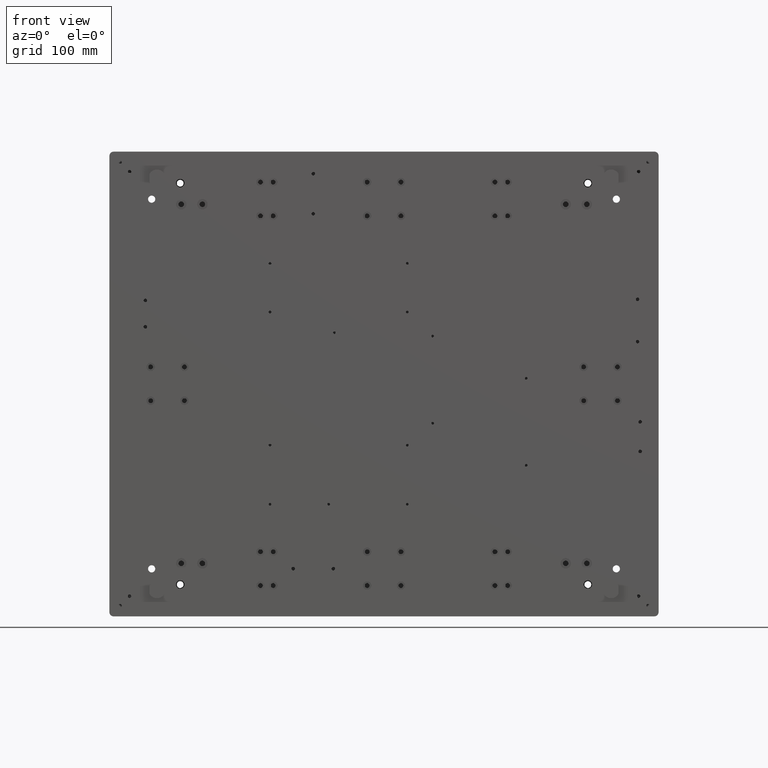
[diagram: clean part render]
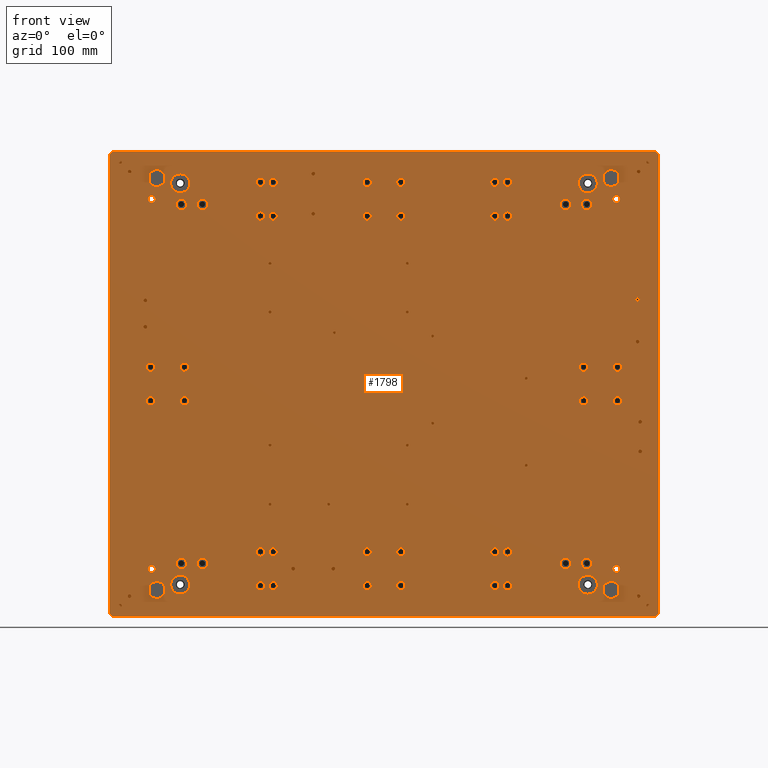
[diagram: same view with one face highlighted and labeled with its STEP entity id]
A machine part, front view. The second image highlights one B-rep face of the part: STEP entity #1798.
In plain terms, the highlighted planar face has unit normal (-0, 1, 0).
Its self-contained STEP definition (entity closure, byte-faithful):
#32 = EDGE_LOOP ( 'NONE', ( #18877 ) ) ;
#46 = CIRCLE ( 'NONE', #38067, 5.000000000000004441 ) ;
#60 = DIRECTION ( 'NONE',  ( 0.000000000000000000, 0.000000000000000000, -1.000000000000000000 ) ) ;
#135 = DIRECTION ( 'NONE',  ( -0.000000000000000000, -1.000000000000000000, -0.000000000000000000 ) ) ;
#138 = CARTESIAN_POINT ( 'NONE',  ( -228.5487244020109756, 6.137181100506329479, 325.0000000000000568 ) ) ;
#149 = AXIS2_PLACEMENT_3D ( 'NONE', #5881, #27474, #12592 ) ;
#166 = EDGE_LOOP ( 'NONE', ( #16145 ) ) ;
#169 = DIRECTION ( 'NONE',  ( 0.000000000000000000, 0.000000000000000000, -1.000000000000000000 ) ) ;
#187 = CARTESIAN_POINT ( 'NONE',  ( 153.4512755979889391, 6.137181100506329479, 495.0000000000001137 ) ) ;
#213 = ORIENTED_EDGE ( 'NONE', *, *, #8534, .F. ) ;
#229 = VERTEX_POINT ( 'NONE', #34113 ) ;
#351 = EDGE_CURVE ( 'NONE', #25924, #7326, #8504, .T. ) ;
#374 = CARTESIAN_POINT ( 'NONE',  ( 204.4512755979889107, 6.137181100506325926, 556.6500000000000909 ) ) ;
#408 = FACE_BOUND ( 'NONE', #11486, .T. ) ;
#430 = DIRECTION ( 'NONE',  ( -0.000000000000000000, -1.000000000000000000, -0.000000000000000000 ) ) ;
#454 = EDGE_LOOP ( 'NONE', ( #19758, #31987, #19641, #33126, #28409, #748, #20707, #27404 ) ) ;
#464 = CARTESIAN_POINT ( 'NONE',  ( -228.5487244020109756, 6.137181100506329479, 316.0000000000000568 ) ) ;
#477 = EDGE_LOOP ( 'NONE', ( #17766 ) ) ;
#515 = VERTEX_POINT ( 'NONE', #27295 ) ;
#528 = ORIENTED_EDGE ( 'NONE', *, *, #11085, .F. ) ;
#594 = CARTESIAN_POINT ( 'NONE',  ( 220.4512755979889391, 6.137181100506329479, 735.0000000000001137 ) ) ;
#643 = EDGE_LOOP ( 'NONE', ( #12997 ) ) ;
#693 = DIRECTION ( 'NONE',  ( -0.000000000000000000, -1.000000000000000000, -0.000000000000000000 ) ) ;
#701 = EDGE_LOOP ( 'NONE', ( #21082 ) ) ;
#713 = EDGE_CURVE ( 'NONE', #36548, #36548, #26244, .T. ) ;
#737 = DIRECTION ( 'NONE',  ( 0.000000000000000000, 0.000000000000000000, -1.000000000000000000 ) ) ;
#742 = EDGE_LOOP ( 'NONE', ( #3703 ) ) ;
#748 = ORIENTED_EDGE ( 'NONE', *, *, #25809, .F. ) ;
#755 = VERTEX_POINT ( 'NONE', #187 ) ;
#770 = ORIENTED_EDGE ( 'NONE', *, *, #25075, .F. ) ;
#784 = EDGE_CURVE ( 'NONE', #10561, #10561, #28702, .T. ) ;
#897 = CIRCLE ( 'NONE', #2188, 1.650000000000040323 ) ;
#925 = DIRECTION ( 'NONE',  ( 0.000000000000000000, 0.000000000000000000, 1.000000000000000000 ) ) ;
#951 = DIRECTION ( 'NONE',  ( 0.000000000000000000, 0.000000000000000000, -1.000000000000000000 ) ) ;
#993 = DIRECTION ( 'NONE',  ( 0.000000000000000000, -1.000000000000000000, 0.000000000000000000 ) ) ;
#1056 = CARTESIAN_POINT ( 'NONE',  ( 69.45127559798891070, 6.137181100506329479, 324.0000000000001137 ) ) ;
#1130 = FACE_BOUND ( 'NONE', #37083, .T. ) ;
#1216 = VERTEX_POINT ( 'NONE', #31948 ) ;
#1294 = CARTESIAN_POINT ( 'NONE',  ( 156.4512755979889960, 6.137181100506329479, 345.0000000000000568 ) ) ;
#1299 = CIRCLE ( 'NONE', #16483, 1.249999999999973355 ) ;
#1330 = CARTESIAN_POINT ( 'NONE',  ( -295.5487244020110893, 6.137181100506329479, 295.0000000000000568 ) ) ;
#1375 = DIRECTION ( 'NONE',  ( 0.000000000000000000, 0.000000000000000000, 1.000000000000000000 ) ) ;
#1459 = AXIS2_PLACEMENT_3D ( 'NONE', #23375, #23563, #1762 ) ;
#1500 = CIRCLE ( 'NONE', #23677, 1.249999999999973355 ) ;
#1514 = DIRECTION ( 'NONE',  ( 0.000000000000000000, 0.000000000000000000, -1.000000000000000000 ) ) ;
#1523 = FACE_BOUND ( 'NONE', #26487, .T. ) ;
#1554 = CARTESIAN_POINT ( 'NONE',  ( 184.4512755979890244, 6.137181100506325926, 340.0000000000000568 ) ) ;
#1555 = CARTESIAN_POINT ( 'NONE',  ( 206.9512755979890812, 6.137181100506325926, 480.6500000000000909 ) ) ;
#1687 = EDGE_CURVE ( 'NONE', #16495, #16495, #28582, .T. ) ;
#1699 = CARTESIAN_POINT ( 'NONE',  ( -250.5487244020109188, 6.137181100506328590, 316.5999999999999659 ) ) ;
#1704 = AXIS2_PLACEMENT_3D ( 'NONE', #34659, #19373, #7493 ) ;
#1730 = DIRECTION ( 'NONE',  ( 0.000000000000000000, 0.000000000000000000, 1.000000000000000000 ) ) ;
#1762 = DIRECTION ( 'NONE',  ( 0.000000000000000000, 0.000000000000000000, -1.000000000000000000 ) ) ;
#1763 = CARTESIAN_POINT ( 'NONE',  ( -295.5487244020110893, 6.137181100506329479, 735.0000000000001137 ) ) ;
#1798 = ADVANCED_FACE ( 'NONE', ( #20274, #11905, #24018, #8369, #12098, #5394, #2594, #15070, #17466, #17662, #17851, #2397, #21037, #38698, #14490, #26785, #23620, #27180, #5975, #35720, #38884, #18047, #30144, #24204, #14299, #32361, #2206, #11704, #14873, #23819, #35917, #26401, #8756, #38500, #20851, #32940, #11329, #5786, #23434, #12485, #10050, #36687, #16377, #22148, #37619, #22342, #34244, #7078, #4091, #28485, #19160, #24399, #18443, #3172, #31261, #36495, #15457, #27569, #16169, #25715, #31453, #408, #28277, #9329, #21422, #24593, #9130, #15266, #37422, #31671, #19362, #3361, #33517, #1130, #13415, #10440, #6366, #25319, #1523, #12290, #22552, #13217, #10242, #34438, #7283 ), #4296, .F. ) ;
#1859 = CIRCLE ( 'NONE', #16960, 4.000000000000003553 ) ;
#1864 = ORIENTED_EDGE ( 'NONE', *, *, #18859, .F. ) ;
#1874 = CARTESIAN_POINT ( 'NONE',  ( 220.4512755979889391, 6.137181100506329479, 731.0000000000001137 ) ) ;
#1938 = VERTEX_POINT ( 'NONE', #14033 ) ;
#2094 = EDGE_LOOP ( 'NONE', ( #5852 ) ) ;
#2188 = AXIS2_PLACEMENT_3D ( 'NONE', #7494, #16589, #29295 ) ;
#2206 = FACE_BOUND ( 'NONE', #3862, .T. ) ;
#2221 = AXIS2_PLACEMENT_3D ( 'NONE', #3982, #16063, #38111 ) ;
#2229 = DIRECTION ( 'NONE',  ( 0.000000000000000000, 0.000000000000000000, 1.000000000000000000 ) ) ;
#2240 = DIRECTION ( 'NONE',  ( 0.000000000000000000, 0.000000000000000000, -1.000000000000000000 ) ) ;
#2265 = DIRECTION ( 'NONE',  ( 0.000000000000000000, 0.000000000000000000, 1.000000000000000000 ) ) ;
#2387 = ORIENTED_EDGE ( 'NONE', *, *, #10753, .F. ) ;
#2397 = FACE_BOUND ( 'NONE', #38642, .T. ) ;
#2594 = FACE_BOUND ( 'NONE', #4812, .T. ) ;
#2615 = VERTEX_POINT ( 'NONE', #38907 ) ;
#2663 = CARTESIAN_POINT ( 'NONE',  ( -152.5487244020110325, 6.137181100506329479, 356.0000000000000568 ) ) ;
#2672 = EDGE_LOOP ( 'NONE', ( #30467 ) ) ;
#2682 = EDGE_CURVE ( 'NONE', #20474, #20474, #16249, .T. ) ;
#2842 = CIRCLE ( 'NONE', #36450, 4.000000000000003553 ) ;
#2891 = DIRECTION ( 'NONE',  ( 0.000000000000000000, -1.000000000000000000, 0.000000000000000000 ) ) ;
#2938 = CARTESIAN_POINT ( 'NONE',  ( 224.4512755979889391, 6.137181100506329479, 295.0000000000000568 ) ) ;
#2993 = CARTESIAN_POINT ( 'NONE',  ( -152.5487244020110325, 6.137181100506329479, 670.0000000000000000 ) ) ;
#3048 = EDGE_CURVE ( 'NONE', #38714, #38714, #24821, .T. ) ;
#3056 = DIRECTION ( 'NONE',  ( 0.000000000000000000, -1.000000000000000000, 0.000000000000000000 ) ) ;
#3063 = DIRECTION ( 'NONE',  ( -0.000000000000000000, -1.000000000000000000, -0.000000000000000000 ) ) ;
#3100 = VERTEX_POINT ( 'NONE', #9815 ) ;
#3147 = EDGE_LOOP ( 'NONE', ( #770 ) ) ;
#3172 = FACE_BOUND ( 'NONE', #34277, .T. ) ;
#3183 = ORIENTED_EDGE ( 'NONE', *, *, #25944, .F. ) ;
#3191 = VERTEX_POINT ( 'NONE', #3575 ) ;
#3222 = AXIS2_PLACEMENT_3D ( 'NONE', #11916, #18645, #27580 ) ;
#3245 = DIRECTION ( 'NONE',  ( 0.000000000000000000, 0.000000000000000000, -1.000000000000000000 ) ) ;
#3319 = AXIS2_PLACEMENT_3D ( 'NONE', #27423, #36167, #8995 ) ;
#3320 = ORIENTED_EDGE ( 'NONE', *, *, #17262, .F. ) ;
#3344 = DIRECTION ( 'NONE',  ( -0.000000000000000000, -1.000000000000000000, -0.000000000000000000 ) ) ;
#3361 = FACE_BOUND ( 'NONE', #38302, .T. ) ;
#3399 = DIRECTION ( 'NONE',  ( -0.000000000000000000, -1.000000000000000000, -0.000000000000000000 ) ) ;
#3464 = CARTESIAN_POINT ( 'NONE',  ( 153.4512755979889391, 6.137181100506329479, 499.0000000000001137 ) ) ;
#3532 = ORIENTED_EDGE ( 'NONE', *, *, #14131, .F. ) ;
#3575 = CARTESIAN_POINT ( 'NONE',  ( 214.4512755979889391, 6.137181100506329479, 306.6500000000000341 ) ) ;
#3591 = ORIENTED_EDGE ( 'NONE', *, *, #28147, .F. ) ;
#3633 = DIRECTION ( 'NONE',  ( -0.000000000000000000, -1.000000000000000000, -0.000000000000000000 ) ) ;
#3682 = AXIS2_PLACEMENT_3D ( 'NONE', #10590, #13357, #4854 ) ;
#3703 = ORIENTED_EDGE ( 'NONE', *, *, #16224, .F. ) ;
#3746 = ORIENTED_EDGE ( 'NONE', *, *, #27753, .F. ) ;
#3862 = EDGE_LOOP ( 'NONE', ( #31059 ) ) ;
#3884 = ORIENTED_EDGE ( 'NONE', *, *, #9199, .F. ) ;
#3911 = EDGE_CURVE ( 'NONE', #12697, #12697, #18896, .T. ) ;
#3982 = CARTESIAN_POINT ( 'NONE',  ( -255.5487244020110325, 6.137181100506325926, 690.0000000000001137 ) ) ;
#4058 = AXIS2_PLACEMENT_3D ( 'NONE', #13532, #25635, #10563 ) ;
#4059 = AXIS2_PLACEMENT_3D ( 'NONE', #11413, #22940, #26104 ) ;
#4071 = EDGE_CURVE ( 'NONE', #36511, #36511, #35407, .T. ) ;
#4091 = FACE_BOUND ( 'NONE', #12693, .T. ) ;
#4157 = AXIS2_PLACEMENT_3D ( 'NONE', #38359, #20126, #20322 ) ;
#4296 = PLANE ( 'NONE',  #14659 ) ;
#4345 = DIRECTION ( 'NONE',  ( 0.000000000000000000, -1.000000000000000000, 0.000000000000000000 ) ) ;
#4421 = EDGE_LOOP ( 'NONE', ( #528 ) ) ;
#4479 = CARTESIAN_POINT ( 'NONE',  ( -102.5487244020110182, 6.137181100506329479, 677.6500000000000909 ) ) ;
#4501 = CIRCLE ( 'NONE', #11454, 4.000000000000003553 ) ;
#4567 = DIRECTION ( 'NONE',  ( -0.000000000000000000, -1.000000000000000000, -0.000000000000000000 ) ) ;
#4639 = DIRECTION ( 'NONE',  ( 0.000000000000000000, 0.000000000000000000, -1.000000000000000000 ) ) ;
#4699 = EDGE_CURVE ( 'NONE', #229, #229, #17175, .T. ) ;
#4706 = EDGE_CURVE ( 'NONE', #3191, #3191, #29221, .T. ) ;
#4779 = CARTESIAN_POINT ( 'NONE',  ( -51.54872440201108219, 6.137181100506329479, 352.0000000000000568 ) ) ;
#4811 = DIRECTION ( 'NONE',  ( 0.000000000000000000, 0.000000000000000000, -1.000000000000000000 ) ) ;
#4812 = EDGE_LOOP ( 'NONE', ( #213 ) ) ;
#4854 = DIRECTION ( 'NONE',  ( 0.000000000000000000, 0.000000000000000000, -1.000000000000000000 ) ) ;
#4869 = ORIENTED_EDGE ( 'NONE', *, *, #31338, .F. ) ;
#4884 = EDGE_CURVE ( 'NONE', #18461, #18461, #16415, .T. ) ;
#4903 = DIRECTION ( 'NONE',  ( 0.000000000000000000, -1.000000000000000000, 0.000000000000000000 ) ) ;
#4928 = VERTEX_POINT ( 'NONE', #7899 ) ;
#4933 = EDGE_CURVE ( 'NONE', #33915, #33915, #38605, .T. ) ;
#4980 = CARTESIAN_POINT ( 'NONE',  ( -152.5487244020110325, 6.137181100506329479, 706.0000000000000000 ) ) ;
#5043 = CARTESIAN_POINT ( 'NONE',  ( 185.4512755979890244, 6.137181100506329479, 527.0000000000000000 ) ) ;
#5081 = AXIS2_PLACEMENT_3D ( 'NONE', #6000, #430, #11928 ) ;
#5091 = CARTESIAN_POINT ( 'NONE',  ( -19.54872440201105377, 6.137181100506329479, 324.0000000000001137 ) ) ;
#5117 = CARTESIAN_POINT ( 'NONE',  ( -102.5487244020110182, 6.137181100506329479, 714.0000000000002274 ) ) ;
#5129 = DIRECTION ( 'NONE',  ( 0.000000000000000000, 0.000000000000000000, 1.000000000000000000 ) ) ;
#5304 = AXIS2_PLACEMENT_3D ( 'NONE', #34446, #31461, #6896 ) ;
#5316 = VERTEX_POINT ( 'NONE', #11437 ) ;
#5378 = VERTEX_POINT ( 'NONE', #17448 ) ;
#5394 = FACE_BOUND ( 'NONE', #32, .T. ) ;
#5441 = CARTESIAN_POINT ( 'NONE',  ( -285.5487244020110893, 6.137181100506329479, 725.0000000000001137 ) ) ;
#5466 = DIRECTION ( 'NONE',  ( 0.000000000000000000, 0.000000000000000000, 1.000000000000000000 ) ) ;
#5526 = CIRCLE ( 'NONE', #37175, 4.000000000000003553 ) ;
#5554 = AXIS2_PLACEMENT_3D ( 'NONE', #20073, #32736, #10938 ) ;
#5624 = DIRECTION ( 'NONE',  ( 0.000000000000000000, 0.000000000000000000, 1.000000000000000000 ) ) ;
#5667 = DIRECTION ( 'NONE',  ( 0.000000000000000000, 0.000000000000000000, -1.000000000000000000 ) ) ;
#5671 = DIRECTION ( 'NONE',  ( 0.000000000000000000, -0.000000000000000000, 1.000000000000000000 ) ) ;
#5750 = ORIENTED_EDGE ( 'NONE', *, *, #784, .F. ) ;
#5755 = EDGE_CURVE ( 'NONE', #28555, #28555, #26544, .T. ) ;
#5786 = FACE_BOUND ( 'NONE', #22359, .T. ) ;
#5808 = DIRECTION ( 'NONE',  ( 0.000000000000000000, 1.000000000000000000, -0.000000000000000000 ) ) ;
#5809 = VERTEX_POINT ( 'NONE', #8395 ) ;
#5852 = ORIENTED_EDGE ( 'NONE', *, *, #5885, .F. ) ;
#5854 = DIRECTION ( 'NONE',  ( 0.000000000000000000, 0.000000000000000000, 1.000000000000000000 ) ) ;
#5881 = CARTESIAN_POINT ( 'NONE',  ( -227.5487244020110325, 6.137181100506329479, 685.0000000000000000 ) ) ;
#5885 = EDGE_CURVE ( 'NONE', #19840, #19840, #11344, .T. ) ;
#5939 = EDGE_CURVE ( 'NONE', #28145, #28145, #17679, .T. ) ;
#5975 = FACE_BOUND ( 'NONE', #14430, .T. ) ;
#6000 = CARTESIAN_POINT ( 'NONE',  ( -152.5487244020110325, 6.137181100506329479, 324.0000000000001137 ) ) ;
#6001 = CIRCLE ( 'NONE', #9768, 3.399999999999958611 ) ;
#6009 = CARTESIAN_POINT ( 'NONE',  ( 81.45127559798892491, 6.137181100506329479, 674.0000000000000000 ) ) ;
#6058 = CARTESIAN_POINT ( 'NONE',  ( -140.5487244020110609, 6.137181100506329479, 356.0000000000000568 ) ) ;
#6063 = EDGE_CURVE ( 'NONE', #3100, #14208, #1859, .T. ) ;
#6075 = CIRCLE ( 'NONE', #26340, 1.249999999999973355 ) ;
#6142 = CARTESIAN_POINT ( 'NONE',  ( 10.45127559798891781, 6.137181100506329479, 561.5000000000000000 ) ) ;
#6287 = EDGE_LOOP ( 'NONE', ( #27266 ) ) ;
#6288 = VERTEX_POINT ( 'NONE', #21723 ) ;
#6366 = FACE_BOUND ( 'NONE', #26936, .T. ) ;
#6394 = VECTOR ( 'NONE', #5671, 1000.000000000000000 ) ;
#6456 = DIRECTION ( 'NONE',  ( 0.000000000000000000, -1.000000000000000000, 0.000000000000000000 ) ) ;
#6476 = DIRECTION ( 'NONE',  ( 0.000000000000000000, 0.000000000000000000, -1.000000000000000000 ) ) ;
#6491 = EDGE_CURVE ( 'NONE', #19043, #19043, #36636, .T. ) ;
#6582 = ORIENTED_EDGE ( 'NONE', *, *, #30732, .F. ) ;
#6646 = CARTESIAN_POINT ( 'NONE',  ( 10.45127559798891781, 6.137181100506329479, 560.2500000000000000 ) ) ;
#6683 = DIRECTION ( 'NONE',  ( 0.000000000000000000, -1.000000000000000000, 0.000000000000000000 ) ) ;
#6728 = AXIS2_PLACEMENT_3D ( 'NONE', #21778, #18421, #951 ) ;
#6818 = ORIENTED_EDGE ( 'NONE', *, *, #25526, .F. ) ;
#6868 = DIRECTION ( 'NONE',  ( -0.000000000000000000, -1.000000000000000000, -0.000000000000000000 ) ) ;
#6896 = DIRECTION ( 'NONE',  ( 0.000000000000000000, 0.000000000000000000, -1.000000000000000000 ) ) ;
#6907 = VERTEX_POINT ( 'NONE', #15992 ) ;
#7071 = CARTESIAN_POINT ( 'NONE',  ( -143.5487244020111177, 6.137181100506329479, 456.9999999999972715 ) ) ;
#7078 = FACE_BOUND ( 'NONE', #742, .T. ) ;
#7083 = EDGE_LOOP ( 'NONE', ( #20166 ) ) ;
#7130 = CARTESIAN_POINT ( 'NONE',  ( 206.9512755979890812, 6.137181100506325926, 479.0000000000000568 ) ) ;
#7136 = DIRECTION ( 'NONE',  ( 0.000000000000000000, 0.000000000000000000, -1.000000000000000000 ) ) ;
#7145 = CARTESIAN_POINT ( 'NONE',  ( 98.95127559798888228, 6.137181100506329479, 521.5000000000001137 ) ) ;
#7158 = EDGE_CURVE ( 'NONE', #20045, #20045, #13775, .T. ) ;
#7274 = DIRECTION ( 'NONE',  ( 0.000000000000000000, 0.000000000000000000, 1.000000000000000000 ) ) ;
#7278 = CARTESIAN_POINT ( 'NONE',  ( -295.5487244020110893, 6.137181100506329479, 731.0000000000001137 ) ) ;
#7283 = FACE_BOUND ( 'NONE', #6287, .T. ) ;
#7326 = VERTEX_POINT ( 'NONE', #594 ) ;
#7407 = EDGE_CURVE ( 'NONE', #12063, #3100, #24779, .T. ) ;
#7421 = EDGE_LOOP ( 'NONE', ( #33224 ) ) ;
#7493 = DIRECTION ( 'NONE',  ( 0.000000000000000000, 0.000000000000000000, 1.000000000000000000 ) ) ;
#7494 = CARTESIAN_POINT ( 'NONE',  ( -261.5487244020110325, 6.137181100506329479, 569.0000000000001137 ) ) ;
#7607 = VERTEX_POINT ( 'NONE', #10360 ) ;
#7658 = DIRECTION ( 'NONE',  ( -0.000000000000000000, -1.000000000000000000, -0.000000000000000000 ) ) ;
#7659 = VERTEX_POINT ( 'NONE', #4479 ) ;
#7736 = DIRECTION ( 'NONE',  ( 0.000000000000000000, 0.000000000000000000, -1.000000000000000000 ) ) ;
#7769 = DIRECTION ( 'NONE',  ( 0.000000000000000000, 0.000000000000000000, -1.000000000000000000 ) ) ;
#7899 = CARTESIAN_POINT ( 'NONE',  ( 206.9512755979889675, 6.137181100506325926, 452.6500000000000909 ) ) ;
#7904 = CARTESIAN_POINT ( 'NONE',  ( -228.5487244020110040, 6.137181100506329479, 696.0000000000001137 ) ) ;
#7912 = DIRECTION ( 'NONE',  ( 0.000000000000000000, 0.000000000000000000, 1.000000000000000000 ) ) ;
#7947 = AXIS2_PLACEMENT_3D ( 'NONE', #1554, #22582, #7912 ) ;
#7954 = VERTEX_POINT ( 'NONE', #34721 ) ;
#7987 = CIRCLE ( 'NONE', #37089, 1.249999999999973355 ) ;
#8006 = AXIS2_PLACEMENT_3D ( 'NONE', #15889, #26212, #19682 ) ;
#8038 = EDGE_LOOP ( 'NONE', ( #21465 ) ) ;
#8039 = CIRCLE ( 'NONE', #12454, 4.000000000000003553 ) ;
#8137 = DIRECTION ( 'NONE',  ( -0.000000000000000000, -1.000000000000000000, -0.000000000000000000 ) ) ;
#8145 = AXIS2_PLACEMENT_3D ( 'NONE', #15357, #6456, #33420 ) ;
#8179 = VERTEX_POINT ( 'NONE', #32642 ) ;
#8217 = EDGE_CURVE ( 'NONE', #30501, #30501, #32671, .T. ) ;
#8220 = AXIS2_PLACEMENT_3D ( 'NONE', #19337, #28458, #34830 ) ;
#8231 = ORIENTED_EDGE ( 'NONE', *, *, #24873, .F. ) ;
#8258 = ORIENTED_EDGE ( 'NONE', *, *, #9382, .F. ) ;
#8343 = CARTESIAN_POINT ( 'NONE',  ( 69.45127559798891070, 6.137181100506329479, 702.0000000000000000 ) ) ;
#8369 = FACE_BOUND ( 'NONE', #9664, .T. ) ;
#8390 = CARTESIAN_POINT ( 'NONE',  ( 214.4512755979889391, 6.137181100506329479, 305.0000000000000000 ) ) ;
#8394 = DIRECTION ( 'NONE',  ( 0.000000000000000000, -1.000000000000000000, 0.000000000000000000 ) ) ;
#8395 = CARTESIAN_POINT ( 'NONE',  ( -19.54872440201105377, 6.137181100506329479, 670.0000000000000000 ) ) ;
#8479 = AXIS2_PLACEMENT_3D ( 'NONE', #3464, #693, #27661 ) ;
#8504 = LINE ( 'NONE', #1763, #18218 ) ;
#8534 = EDGE_CURVE ( 'NONE', #27919, #27919, #38983, .T. ) ;
#8561 = EDGE_CURVE ( 'NONE', #7326, #28927, #37088, .T. ) ;
#8627 = CIRCLE ( 'NONE', #8006, 1.649999999999929301 ) ;
#8756 = FACE_BOUND ( 'NONE', #7083, .T. ) ;
#8788 = DIRECTION ( 'NONE',  ( 0.000000000000000000, 0.000000000000000000, -1.000000000000000000 ) ) ;
#8850 = AXIS2_PLACEMENT_3D ( 'NONE', #11788, #23898, #5854 ) ;
#8861 = CARTESIAN_POINT ( 'NONE',  ( 214.4512755979889391, 6.137181100506329479, 725.0000000000000000 ) ) ;
#8867 = EDGE_CURVE ( 'NONE', #30894, #30894, #37551, .T. ) ;
#8872 = CARTESIAN_POINT ( 'NONE',  ( -250.5487244020110893, 6.137181100506328590, 706.6000000000001364 ) ) ;
#8944 = DIRECTION ( 'NONE',  ( -1.000000000000000000, -0.000000000000000000, -0.000000000000000000 ) ) ;
#8995 = DIRECTION ( 'NONE',  ( 0.000000000000000000, 0.000000000000000000, 1.000000000000000000 ) ) ;
#9130 = FACE_BOUND ( 'NONE', #477, .T. ) ;
#9149 = CARTESIAN_POINT ( 'NONE',  ( -152.5487244020110325, 6.137181100506329479, 320.0000000000001137 ) ) ;
#9199 = EDGE_CURVE ( 'NONE', #15427, #15427, #22378, .T. ) ;
#9281 = DIRECTION ( 'NONE',  ( -0.000000000000000000, -1.000000000000000000, -0.000000000000000000 ) ) ;
#9327 = DIRECTION ( 'NONE',  ( 0.000000000000000000, 1.000000000000000000, 0.000000000000000000 ) ) ;
#9329 = FACE_BOUND ( 'NONE', #18169, .T. ) ;
#9349 = CARTESIAN_POINT ( 'NONE',  ( -143.5487244020111177, 6.137181100506329479, 402.2499999999972147 ) ) ;
#9358 = EDGE_CURVE ( 'NONE', #27538, #27538, #11951, .T. ) ;
#9382 = EDGE_CURVE ( 'NONE', #10259, #10259, #14470, .T. ) ;
#9388 = CIRCLE ( 'NONE', #34058, 4.000000000000003553 ) ;
#9420 = CARTESIAN_POINT ( 'NONE',  ( -51.54872440201108219, 6.137181100506329479, 674.0000000000000000 ) ) ;
#9448 = DIRECTION ( 'NONE',  ( 0.000000000000000000, 0.000000000000000000, -1.000000000000000000 ) ) ;
#9531 = EDGE_LOOP ( 'NONE', ( #31765 ) ) ;
#9562 = CARTESIAN_POINT ( 'NONE',  ( -295.5487244020110893, 6.137181100506329479, 299.0000000000000568 ) ) ;
#9664 = EDGE_LOOP ( 'NONE', ( #36780 ) ) ;
#9693 = EDGE_CURVE ( 'NONE', #6907, #6907, #11339, .T. ) ;
#9726 = CIRCLE ( 'NONE', #14781, 1.650000000000040323 ) ;
#9731 = VERTEX_POINT ( 'NONE', #30951 ) ;
#9737 = CARTESIAN_POINT ( 'NONE',  ( -13.54872440201104666, 6.137181100506329479, 630.2499999999972715 ) ) ;
#9754 = CIRCLE ( 'NONE', #26853, 4.000000000000003553 ) ;
#9768 = AXIS2_PLACEMENT_3D ( 'NONE', #15338, #3056, #11985 ) ;
#9815 = CARTESIAN_POINT ( 'NONE',  ( -291.5487244020110893, 6.137181100506329479, 295.0000000000000568 ) ) ;
#9920 = DIRECTION ( 'NONE',  ( 0.000000000000000000, 0.000000000000000000, 1.000000000000000000 ) ) ;
#9960 = EDGE_CURVE ( 'NONE', #22361, #22361, #34350, .T. ) ;
#10050 = FACE_BOUND ( 'NONE', #29426, .T. ) ;
#10071 = VERTEX_POINT ( 'NONE', #22168 ) ;
#10118 = CARTESIAN_POINT ( 'NONE',  ( -19.54872440201105377, 6.137181100506329479, 702.0000000000000000 ) ) ;
#10187 = DIRECTION ( 'NONE',  ( 0.000000000000000000, 0.000000000000000000, -1.000000000000000000 ) ) ;
#10242 = FACE_BOUND ( 'NONE', #3147, .T. ) ;
#10259 = VERTEX_POINT ( 'NONE', #37842 ) ;
#10312 = EDGE_LOOP ( 'NONE', ( #26480 ) ) ;
#10347 = AXIS2_PLACEMENT_3D ( 'NONE', #32287, #13639, #5129 ) ;
#10360 = CARTESIAN_POINT ( 'NONE',  ( -255.5487244020110325, 6.137181100506325926, 343.4000000000000341 ) ) ;
#10420 = EDGE_CURVE ( 'NONE', #10071, #10071, #38833, .T. ) ;
#10440 = FACE_BOUND ( 'NONE', #25535, .T. ) ;
#10506 = ORIENTED_EDGE ( 'NONE', *, *, #38752, .F. ) ;
#10561 = VERTEX_POINT ( 'NONE', #19482 ) ;
#10563 = DIRECTION ( 'NONE',  ( 0.000000000000000000, 0.000000000000000000, -1.000000000000000000 ) ) ;
#10590 = CARTESIAN_POINT ( 'NONE',  ( -19.54872440201105377, 6.137181100506329479, 356.0000000000000568 ) ) ;
#10671 = CIRCLE ( 'NONE', #30933, 4.000000000000003553 ) ;
#10694 = CIRCLE ( 'NONE', #34785, 3.399999999999958611 ) ;
#10699 = CARTESIAN_POINT ( 'NONE',  ( 204.4512755979889107, 6.137181100506325926, 595.0000000000000000 ) ) ;
#10753 = EDGE_CURVE ( 'NONE', #4928, #4928, #12269, .T. ) ;
#10755 = CARTESIAN_POINT ( 'NONE',  ( -285.5487244020110893, 6.137181100506329479, 305.0000000000001137 ) ) ;
#10809 = EDGE_CURVE ( 'NONE', #1938, #1938, #32525, .T. ) ;
#10920 = CARTESIAN_POINT ( 'NONE',  ( -140.5487244020110609, 6.137181100506329479, 352.0000000000000568 ) ) ;
#10938 = DIRECTION ( 'NONE',  ( 0.000000000000000000, 0.000000000000000000, -1.000000000000000000 ) ) ;
#11040 = EDGE_LOOP ( 'NONE', ( #37668 ) ) ;
#11085 = EDGE_CURVE ( 'NONE', #17195, #17195, #9754, .T. ) ;
#11180 = ORIENTED_EDGE ( 'NONE', *, *, #31799, .F. ) ;
#11202 = CARTESIAN_POINT ( 'NONE',  ( 81.45127559798892491, 6.137181100506329479, 706.0000000000000000 ) ) ;
#11230 = AXIS2_PLACEMENT_3D ( 'NONE', #14132, #5808, #14903 ) ;
#11318 = EDGE_LOOP ( 'NONE', ( #31746 ) ) ;
#11329 = FACE_BOUND ( 'NONE', #25669, .T. ) ;
#11339 = CIRCLE ( 'NONE', #28408, 1.249999999999973355 ) ;
#11344 = CIRCLE ( 'NONE', #19581, 4.000000000000003553 ) ;
#11372 = DIRECTION ( 'NONE',  ( 0.000000000000000000, -1.000000000000000000, 0.000000000000000000 ) ) ;
#11383 = CARTESIAN_POINT ( 'NONE',  ( -143.5487244020111177, 6.137181100506329479, 628.9999999999973852 ) ) ;
#11413 = CARTESIAN_POINT ( 'NONE',  ( 179.4512755979889107, 6.137181100506328590, 710.0000000000002274 ) ) ;
#11428 = DIRECTION ( 'NONE',  ( 0.000000000000000000, 0.000000000000000000, 1.000000000000000000 ) ) ;
#11437 = CARTESIAN_POINT ( 'NONE',  ( -121.5487244020110040, 6.137181100506329479, 341.6500000000000341 ) ) ;
#11454 = AXIS2_PLACEMENT_3D ( 'NONE', #6058, #3063, #27264 ) ;
#11484 = ORIENTED_EDGE ( 'NONE', *, *, #22434, .F. ) ;
#11486 = EDGE_LOOP ( 'NONE', ( #19742 ) ) ;
#11493 = VERTEX_POINT ( 'NONE', #39056 ) ;
#11553 = DIRECTION ( 'NONE',  ( -0.000000000000000000, -1.000000000000000000, -0.000000000000000000 ) ) ;
#11690 = DIRECTION ( 'NONE',  ( 0.000000000000000000, 0.000000000000000000, 1.000000000000000000 ) ) ;
#11704 = FACE_BOUND ( 'NONE', #34227, .T. ) ;
#11725 = CARTESIAN_POINT ( 'NONE',  ( -143.5487244020110893, 6.137181100506329479, 584.2499999999971578 ) ) ;
#11738 = DIRECTION ( 'NONE',  ( 0.000000000000000000, 0.000000000000000000, 1.000000000000000000 ) ) ;
#11788 = CARTESIAN_POINT ( 'NONE',  ( -102.5487244020110182, 6.137181100506329479, 676.0000000000000000 ) ) ;
#11801 = DIRECTION ( 'NONE',  ( 0.000000000000000000, 0.000000000000000000, -1.000000000000000000 ) ) ;
#11811 = CIRCLE ( 'NONE', #12428, 1.249999999999973355 ) ;
#11812 = DIRECTION ( 'NONE',  ( -0.000000000000000000, -1.000000000000000000, -0.000000000000000000 ) ) ;
#11905 = FACE_BOUND ( 'NONE', #20958, .T. ) ;
#11911 = CARTESIAN_POINT ( 'NONE',  ( -51.54872440201108219, 6.137181100506329479, 706.0000000000000000 ) ) ;
#11916 = CARTESIAN_POINT ( 'NONE',  ( -140.5487244020110609, 6.137181100506329479, 324.0000000000001137 ) ) ;
#11919 = EDGE_LOOP ( 'NONE', ( #3591 ) ) ;
#11928 = DIRECTION ( 'NONE',  ( 0.000000000000000000, 0.000000000000000000, -1.000000000000000000 ) ) ;
#11951 = CIRCLE ( 'NONE', #37291, 1.650000000000040323 ) ;
#11965 = EDGE_CURVE ( 'NONE', #5316, #5316, #23579, .T. ) ;
#11985 = DIRECTION ( 'NONE',  ( 0.000000000000000000, 0.000000000000000000, 1.000000000000000000 ) ) ;
#12000 = AXIS2_PLACEMENT_3D ( 'NONE', #1056, #36372, #3245 ) ;
#12063 = VERTEX_POINT ( 'NONE', #36609 ) ;
#12069 = CARTESIAN_POINT ( 'NONE',  ( 156.4512755979889960, 6.137181100506329479, 680.0000000000000000 ) ) ;
#12098 = FACE_BOUND ( 'NONE', #643, .T. ) ;
#12105 = AXIS2_PLACEMENT_3D ( 'NONE', #26424, #29014, #20098 ) ;
#12122 = CARTESIAN_POINT ( 'NONE',  ( 205.4512755979890244, 6.137181100506329479, 716.0000000000000000 ) ) ;
#12144 = EDGE_CURVE ( 'NONE', #21866, #21866, #24200, .T. ) ;
#12168 = EDGE_LOOP ( 'NONE', ( #15987 ) ) ;
#12209 = DIRECTION ( 'NONE',  ( 0.000000000000000000, 0.000000000000000000, -1.000000000000000000 ) ) ;
#12236 = AXIS2_PLACEMENT_3D ( 'NONE', #18362, #33241, #12401 ) ;
#12269 = CIRCLE ( 'NONE', #10347, 1.650000000000040323 ) ;
#12290 = FACE_BOUND ( 'NONE', #17077, .T. ) ;
#12342 = AXIS2_PLACEMENT_3D ( 'NONE', #8861, #2891, #14979 ) ;
#12354 = EDGE_LOOP ( 'NONE', ( #11180 ) ) ;
#12401 = DIRECTION ( 'NONE',  ( 0.000000000000000000, 0.000000000000000000, -1.000000000000000000 ) ) ;
#12407 = DIRECTION ( 'NONE',  ( -0.000000000000000000, -1.000000000000000000, -0.000000000000000000 ) ) ;
#12410 = VECTOR ( 'NONE', #8944, 1000.000000000000000 ) ;
#12428 = AXIS2_PLACEMENT_3D ( 'NONE', #38294, #27352, #11690 ) ;
#12439 = CARTESIAN_POINT ( 'NONE',  ( 185.4512755979890244, 6.137181100506329479, 499.0000000000001137 ) ) ;
#12454 = AXIS2_PLACEMENT_3D ( 'NONE', #27327, #26747, #169 ) ;
#12485 = FACE_BOUND ( 'NONE', #11318, .T. ) ;
#12504 = CARTESIAN_POINT ( 'NONE',  ( -51.54872440201108219, 6.137181100506329479, 320.0000000000001137 ) ) ;
#12552 = VERTEX_POINT ( 'NONE', #24461 ) ;
#12563 = EDGE_CURVE ( 'NONE', #12552, #12552, #29956, .T. ) ;
#12592 = DIRECTION ( 'NONE',  ( 0.000000000000000000, 0.000000000000000000, -1.000000000000000000 ) ) ;
#12633 = DIRECTION ( 'NONE',  ( 0.000000000000000000, -1.000000000000000000, 0.000000000000000000 ) ) ;
#12667 = EDGE_LOOP ( 'NONE', ( #37353 ) ) ;
#12685 = ORIENTED_EDGE ( 'NONE', *, *, #3911, .F. ) ;
#12693 = EDGE_LOOP ( 'NONE', ( #15063 ) ) ;
#12697 = VERTEX_POINT ( 'NONE', #9349 ) ;
#12716 = DIRECTION ( 'NONE',  ( 0.000000000000000000, 0.000000000000000000, -1.000000000000000000 ) ) ;
#12952 = ORIENTED_EDGE ( 'NONE', *, *, #32598, .F. ) ;
#12997 = ORIENTED_EDGE ( 'NONE', *, *, #25939, .F. ) ;
#13000 = EDGE_LOOP ( 'NONE', ( #20266 ) ) ;
#13217 = FACE_BOUND ( 'NONE', #166, .T. ) ;
#13357 = DIRECTION ( 'NONE',  ( -0.000000000000000000, -1.000000000000000000, -0.000000000000000000 ) ) ;
#13415 = FACE_BOUND ( 'NONE', #21649, .T. ) ;
#13481 = CARTESIAN_POINT ( 'NONE',  ( 136.4512755979889675, 6.137181100506329479, 340.0000000000000568 ) ) ;
#13532 = CARTESIAN_POINT ( 'NONE',  ( -228.5487244020110040, 6.137181100506329479, 705.0000000000001137 ) ) ;
#13591 = VERTEX_POINT ( 'NONE', #31643 ) ;
#13625 = CIRCLE ( 'NONE', #35797, 5.000000000000004441 ) ;
#13639 = DIRECTION ( 'NONE',  ( 0.000000000000000000, -1.000000000000000000, 0.000000000000000000 ) ) ;
#13693 = CARTESIAN_POINT ( 'NONE',  ( 156.4512755979889960, 6.137181100506329479, 340.0000000000000568 ) ) ;
#13729 = EDGE_CURVE ( 'NONE', #7607, #7607, #6001, .T. ) ;
#13763 = CARTESIAN_POINT ( 'NONE',  ( 136.4512755979889675, 6.137181100506329479, 345.0000000000000568 ) ) ;
#13770 = DIRECTION ( 'NONE',  ( 0.000000000000000000, 0.000000000000000000, 1.000000000000000000 ) ) ;
#13775 = CIRCLE ( 'NONE', #5554, 4.000000000000003553 ) ;
#13836 = AXIS2_PLACEMENT_3D ( 'NONE', #13763, #34791, #10187 ) ;
#13842 = AXIS2_PLACEMENT_3D ( 'NONE', #25781, #22612, #34710 ) ;
#13876 = ORIENTED_EDGE ( 'NONE', *, *, #27604, .F. ) ;
#13878 = CARTESIAN_POINT ( 'NONE',  ( -207.5487244020109756, 6.137181100506329479, 345.0000000000000568 ) ) ;
#13906 = CARTESIAN_POINT ( 'NONE',  ( 153.4512755979889391, 6.137181100506329479, 527.0000000000000000 ) ) ;
#13935 = CIRCLE ( 'NONE', #36093, 9.000000000000007105 ) ;
#13946 = CIRCLE ( 'NONE', #19642, 4.000000000000003553 ) ;
#13970 = DIRECTION ( 'NONE',  ( 0.000000000000000000, 0.000000000000000000, 1.000000000000000000 ) ) ;
#14033 = CARTESIAN_POINT ( 'NONE',  ( 81.45127559798892491, 6.137181100506329479, 320.0000000000001137 ) ) ;
#14087 = AXIS2_PLACEMENT_3D ( 'NONE', #26890, #11812, #20953 ) ;
#14131 = EDGE_CURVE ( 'NONE', #38330, #38330, #13625, .T. ) ;
#14132 = CARTESIAN_POINT ( 'NONE',  ( -291.5487244020110325, 6.137181100506329479, 731.0000000000001137 ) ) ;
#14158 = DIRECTION ( 'NONE',  ( 0.000000000000000000, 0.000000000000000000, 1.000000000000000000 ) ) ;
#14208 = VERTEX_POINT ( 'NONE', #9562 ) ;
#14245 = DIRECTION ( 'NONE',  ( 1.000000000000000000, 0.000000000000000000, 0.000000000000000000 ) ) ;
#14299 = FACE_BOUND ( 'NONE', #20600, .T. ) ;
#14319 = VERTEX_POINT ( 'NONE', #26422 ) ;
#14321 = AXIS2_PLACEMENT_3D ( 'NONE', #11911, #26985, #15271 ) ;
#14362 = EDGE_CURVE ( 'NONE', #20096, #20096, #19298, .T. ) ;
#14414 = CARTESIAN_POINT ( 'NONE',  ( -19.54872440201105377, 6.137181100506329479, 706.0000000000000000 ) ) ;
#14418 = CIRCLE ( 'NONE', #36580, 4.000000000000003553 ) ;
#14430 = EDGE_LOOP ( 'NONE', ( #8231 ) ) ;
#14453 = CARTESIAN_POINT ( 'NONE',  ( -140.5487244020110609, 6.137181100506329479, 706.0000000000000000 ) ) ;
#14470 = CIRCLE ( 'NONE', #32241, 1.649999999999929301 ) ;
#14474 = VERTEX_POINT ( 'NONE', #29175 ) ;
#14490 = FACE_BOUND ( 'NONE', #12667, .T. ) ;
#14531 = ORIENTED_EDGE ( 'NONE', *, *, #38441, .F. ) ;
#14603 = ORIENTED_EDGE ( 'NONE', *, *, #8217, .F. ) ;
#14611 = AXIS2_PLACEMENT_3D ( 'NONE', #31191, #3633, #27830 ) ;
#14627 = EDGE_LOOP ( 'NONE', ( #15028 ) ) ;
#14659 = AXIS2_PLACEMENT_3D ( 'NONE', #1330, #25511, #34648 ) ;
#14719 = CARTESIAN_POINT ( 'NONE',  ( -227.5487244020110040, 6.137181100506329479, 345.0000000000000568 ) ) ;
#14781 = AXIS2_PLACEMENT_3D ( 'NONE', #7130, #30929, #24973 ) ;
#14805 = CARTESIAN_POINT ( 'NONE',  ( -140.5487244020110609, 6.137181100506329479, 320.0000000000001137 ) ) ;
#14873 = FACE_BOUND ( 'NONE', #17822, .T. ) ;
#14898 = DIRECTION ( 'NONE',  ( 0.000000000000000000, 0.000000000000000000, -1.000000000000000000 ) ) ;
#14903 = DIRECTION ( 'NONE',  ( 0.000000000000000000, 0.000000000000000000, 1.000000000000000000 ) ) ;
#14904 = VERTEX_POINT ( 'NONE', #29403 ) ;
#14979 = DIRECTION ( 'NONE',  ( 0.000000000000000000, 0.000000000000000000, 1.000000000000000000 ) ) ;
#15009 = CIRCLE ( 'NONE', #11230, 4.000000000000003553 ) ;
#15028 = ORIENTED_EDGE ( 'NONE', *, *, #10420, .F. ) ;
#15051 = VERTEX_POINT ( 'NONE', #39065 ) ;
#15063 = ORIENTED_EDGE ( 'NONE', *, *, #28006, .F. ) ;
#15070 = FACE_BOUND ( 'NONE', #4421, .T. ) ;
#15101 = CIRCLE ( 'NONE', #25874, 4.000000000000003553 ) ;
#15133 = EDGE_CURVE ( 'NONE', #2615, #2615, #24449, .T. ) ;
#15199 = AXIS2_PLACEMENT_3D ( 'NONE', #17300, #29409, #2240 ) ;
#15201 = VERTEX_POINT ( 'NONE', #36049 ) ;
#15250 = CIRCLE ( 'NONE', #3222, 4.000000000000003553 ) ;
#15264 = CARTESIAN_POINT ( 'NONE',  ( -295.5487244020110893, 6.137181100506329479, 295.0000000000000568 ) ) ;
#15266 = FACE_BOUND ( 'NONE', #27382, .T. ) ;
#15271 = DIRECTION ( 'NONE',  ( 0.000000000000000000, 0.000000000000000000, -1.000000000000000000 ) ) ;
#15292 = VERTEX_POINT ( 'NONE', #27596 ) ;
#15338 = CARTESIAN_POINT ( 'NONE',  ( -255.5487244020110325, 6.137181100506325926, 340.0000000000000568 ) ) ;
#15357 = CARTESIAN_POINT ( 'NONE',  ( -13.54872440201104666, 6.137181100506329479, 456.9999999999972715 ) ) ;
#15427 = VERTEX_POINT ( 'NONE', #21585 ) ;
#15442 = DIRECTION ( 'NONE',  ( 0.000000000000000000, 0.000000000000000000, -1.000000000000000000 ) ) ;
#15457 = FACE_BOUND ( 'NONE', #16838, .T. ) ;
#15479 = VERTEX_POINT ( 'NONE', #19048 ) ;
#15480 = CIRCLE ( 'NONE', #22459, 5.000000000000004441 ) ;
#15530 = ORIENTED_EDGE ( 'NONE', *, *, #16713, .F. ) ;
#15628 = EDGE_CURVE ( 'NONE', #14319, #14319, #33366, .T. ) ;
#15682 = CARTESIAN_POINT ( 'NONE',  ( -140.5487244020110609, 6.137181100506329479, 674.0000000000000000 ) ) ;
#15762 = CIRCLE ( 'NONE', #20235, 4.000000000000003553 ) ;
#15790 = ORIENTED_EDGE ( 'NONE', *, *, #5755, .F. ) ;
#15889 = CARTESIAN_POINT ( 'NONE',  ( -261.5487244020110325, 6.137181100506329479, 594.0000000000001137 ) ) ;
#15987 = ORIENTED_EDGE ( 'NONE', *, *, #18797, .F. ) ;
#15992 = CARTESIAN_POINT ( 'NONE',  ( -143.5487244020111177, 6.137181100506329479, 630.2499999999972715 ) ) ;
#16024 = ORIENTED_EDGE ( 'NONE', *, *, #15628, .F. ) ;
#16030 = EDGE_CURVE ( 'NONE', #15479, #15479, #21356, .T. ) ;
#16046 = EDGE_LOOP ( 'NONE', ( #30971 ) ) ;
#16063 = DIRECTION ( 'NONE',  ( 0.000000000000000000, -1.000000000000000000, 0.000000000000000000 ) ) ;
#16075 = ORIENTED_EDGE ( 'NONE', *, *, #24424, .F. ) ;
#16111 = ORIENTED_EDGE ( 'NONE', *, *, #11965, .F. ) ;
#16126 = CIRCLE ( 'NONE', #7947, 3.400000000000014122 ) ;
#16145 = ORIENTED_EDGE ( 'NONE', *, *, #29968, .F. ) ;
#16169 = FACE_BOUND ( 'NONE', #23471, .T. ) ;
#16224 = EDGE_CURVE ( 'NONE', #37095, #37095, #14418, .T. ) ;
#16249 = CIRCLE ( 'NONE', #1704, 1.249999999999973355 ) ;
#16295 = EDGE_CURVE ( 'NONE', #9731, #9731, #34028, .T. ) ;
#16377 = FACE_BOUND ( 'NONE', #701, .T. ) ;
#16415 = CIRCLE ( 'NONE', #5081, 4.000000000000003553 ) ;
#16441 = ORIENTED_EDGE ( 'NONE', *, *, #12563, .F. ) ;
#16483 = AXIS2_PLACEMENT_3D ( 'NONE', #7071, #6683, #7274 ) ;
#16495 = VERTEX_POINT ( 'NONE', #28598 ) ;
#16567 = EDGE_LOOP ( 'NONE', ( #27452 ) ) ;
#16589 = DIRECTION ( 'NONE',  ( 0.000000000000000000, -1.000000000000000000, 0.000000000000000000 ) ) ;
#16604 = VERTEX_POINT ( 'NONE', #28710 ) ;
#16626 = EDGE_LOOP ( 'NONE', ( #5750 ) ) ;
#16653 = VERTEX_POINT ( 'NONE', #13693 ) ;
#16713 = EDGE_CURVE ( 'NONE', #24802, #24802, #35362, .T. ) ;
#16722 = CARTESIAN_POINT ( 'NONE',  ( 69.45127559798891070, 6.137181100506329479, 674.0000000000000000 ) ) ;
#16734 = DIRECTION ( 'NONE',  ( 0.000000000000000000, 1.000000000000000000, -0.000000000000000000 ) ) ;
#16838 = EDGE_LOOP ( 'NONE', ( #27984 ) ) ;
#16887 = DIRECTION ( 'NONE',  ( 0.000000000000000000, -1.000000000000000000, 0.000000000000000000 ) ) ;
#16960 = AXIS2_PLACEMENT_3D ( 'NONE', #17541, #17734, #36178 ) ;
#17077 = EDGE_LOOP ( 'NONE', ( #11484 ) ) ;
#17134 = CARTESIAN_POINT ( 'NONE',  ( 10.45127559798891781, 6.137181100506329479, 477.7500000000001137 ) ) ;
#17167 = EDGE_LOOP ( 'NONE', ( #16024 ) ) ;
#17175 = CIRCLE ( 'NONE', #12105, 1.650000000000040323 ) ;
#17195 = VERTEX_POINT ( 'NONE', #35636 ) ;
#17204 = CARTESIAN_POINT ( 'NONE',  ( -121.5487244020110040, 6.137181100506329479, 340.0000000000000000 ) ) ;
#17262 = EDGE_CURVE ( 'NONE', #34519, #34519, #15101, .T. ) ;
#17300 = CARTESIAN_POINT ( 'NONE',  ( 185.4512755979890244, 6.137181100506329479, 531.0000000000000000 ) ) ;
#17305 = EDGE_CURVE ( 'NONE', #7954, #7954, #38551, .T. ) ;
#17344 = CARTESIAN_POINT ( 'NONE',  ( -276.5487244020110325, 6.137181100506329479, 716.0000000000001137 ) ) ;
#17396 = EDGE_LOOP ( 'NONE', ( #18211 ) ) ;
#17448 = CARTESIAN_POINT ( 'NONE',  ( -143.5487244020111177, 6.137181100506329479, 458.2499999999972715 ) ) ;
#17465 = AXIS2_PLACEMENT_3D ( 'NONE', #9420, #38978, #11801 ) ;
#17466 = FACE_BOUND ( 'NONE', #17396, .T. ) ;
#17541 = CARTESIAN_POINT ( 'NONE',  ( -291.5487244020110893, 6.137181100506329479, 299.0000000000000568 ) ) ;
#17640 = CARTESIAN_POINT ( 'NONE',  ( -224.5487244020110609, 6.137181100506329479, 527.0000000000000000 ) ) ;
#17662 = FACE_BOUND ( 'NONE', #2094, .T. ) ;
#17679 = CIRCLE ( 'NONE', #8220, 1.249999999999973355 ) ;
#17734 = DIRECTION ( 'NONE',  ( 0.000000000000000000, 1.000000000000000000, 0.000000000000000000 ) ) ;
#17766 = ORIENTED_EDGE ( 'NONE', *, *, #2682, .F. ) ;
#17782 = EDGE_CURVE ( 'NONE', #37695, #37695, #897, .T. ) ;
#17822 = EDGE_LOOP ( 'NONE', ( #3183 ) ) ;
#17851 = FACE_OUTER_BOUND ( 'NONE', #454, .T. ) ;
#17907 = EDGE_CURVE ( 'NONE', #34312, #34312, #37024, .T. ) ;
#17926 = LINE ( 'NONE', #32434, #6394 ) ;
#18010 = DIRECTION ( 'NONE',  ( -0.000000000000000000, 0.000000000000000000, -1.000000000000000000 ) ) ;
#18021 = CARTESIAN_POINT ( 'NONE',  ( -51.54872440201108219, 6.137181100506329479, 702.0000000000000000 ) ) ;
#18039 = ORIENTED_EDGE ( 'NONE', *, *, #17305, .F. ) ;
#18047 = FACE_BOUND ( 'NONE', #10312, .T. ) ;
#18056 = EDGE_CURVE ( 'NONE', #16653, #16653, #15480, .T. ) ;
#18169 = EDGE_LOOP ( 'NONE', ( #12685 ) ) ;
#18211 = ORIENTED_EDGE ( 'NONE', *, *, #31433, .F. ) ;
#18218 = VECTOR ( 'NONE', #14245, 1000.000000000000000 ) ;
#18236 = EDGE_LOOP ( 'NONE', ( #26050 ) ) ;
#18271 = DIRECTION ( 'NONE',  ( -0.000000000000000000, -1.000000000000000000, -0.000000000000000000 ) ) ;
#18362 = CARTESIAN_POINT ( 'NONE',  ( 81.45127559798892491, 6.137181100506329479, 324.0000000000001137 ) ) ;
#18421 = DIRECTION ( 'NONE',  ( -0.000000000000000000, -1.000000000000000000, -0.000000000000000000 ) ) ;
#18443 = FACE_BOUND ( 'NONE', #29081, .T. ) ;
#18461 = VERTEX_POINT ( 'NONE', #9149 ) ;
#18478 = ORIENTED_EDGE ( 'NONE', *, *, #6491, .F. ) ;
#18534 = DIRECTION ( 'NONE',  ( 0.000000000000000000, 0.000000000000000000, 1.000000000000000000 ) ) ;
#18604 = CARTESIAN_POINT ( 'NONE',  ( -224.5487244020110609, 6.137181100506329479, 495.0000000000001137 ) ) ;
#18630 = DIRECTION ( 'NONE',  ( 0.000000000000000000, 0.000000000000000000, 1.000000000000000000 ) ) ;
#18645 = DIRECTION ( 'NONE',  ( -0.000000000000000000, -1.000000000000000000, -0.000000000000000000 ) ) ;
#18711 = CARTESIAN_POINT ( 'NONE',  ( -291.5487244020110325, 6.137181100506329479, 735.0000000000001137 ) ) ;
#18797 = EDGE_CURVE ( 'NONE', #26379, #26379, #6075, .T. ) ;
#18801 = ORIENTED_EDGE ( 'NONE', *, *, #9358, .F. ) ;
#18859 = EDGE_CURVE ( 'NONE', #11493, #11493, #7987, .T. ) ;
#18877 = ORIENTED_EDGE ( 'NONE', *, *, #18056, .F. ) ;
#18896 = CIRCLE ( 'NONE', #32238, 1.249999999999973355 ) ;
#19043 = VERTEX_POINT ( 'NONE', #13481 ) ;
#19048 = CARTESIAN_POINT ( 'NONE',  ( -207.5487244020109756, 6.137181100506329479, 340.0000000000000000 ) ) ;
#19135 = VERTEX_POINT ( 'NONE', #1699 ) ;
#19160 = FACE_BOUND ( 'NONE', #11919, .T. ) ;
#19184 = EDGE_CURVE ( 'NONE', #23207, #23207, #8627, .T. ) ;
#19235 = CARTESIAN_POINT ( 'NONE',  ( -140.5487244020110609, 6.137181100506329479, 702.0000000000000000 ) ) ;
#19297 = EDGE_CURVE ( 'NONE', #29925, #29925, #37111, .T. ) ;
#19298 = CIRCLE ( 'NONE', #2221, 3.399999999999958611 ) ;
#19337 = CARTESIAN_POINT ( 'NONE',  ( 98.95127559798888228, 6.137181100506329479, 520.2500000000001137 ) ) ;
#19362 = FACE_BOUND ( 'NONE', #18236, .T. ) ;
#19373 = DIRECTION ( 'NONE',  ( 0.000000000000000000, -1.000000000000000000, 0.000000000000000000 ) ) ;
#19397 = DIRECTION ( 'NONE',  ( 0.000000000000000000, -1.000000000000000000, 0.000000000000000000 ) ) ;
#19446 = CARTESIAN_POINT ( 'NONE',  ( 157.4512755979889960, 6.137181100506329479, 696.0000000000001137 ) ) ;
#19482 = CARTESIAN_POINT ( 'NONE',  ( -83.54872440201100403, 6.137181100506329479, 341.6500000000000341 ) ) ;
#19567 = DIRECTION ( 'NONE',  ( -0.000000000000000000, -1.000000000000000000, -0.000000000000000000 ) ) ;
#19581 = AXIS2_PLACEMENT_3D ( 'NONE', #31235, #34412, #9448 ) ;
#19634 = EDGE_LOOP ( 'NONE', ( #37493 ) ) ;
#19641 = ORIENTED_EDGE ( 'NONE', *, *, #8561, .F. ) ;
#19642 = AXIS2_PLACEMENT_3D ( 'NONE', #31004, #25442, #21876 ) ;
#19665 = AXIS2_PLACEMENT_3D ( 'NONE', #21927, #6868, #34020 ) ;
#19682 = DIRECTION ( 'NONE',  ( 0.000000000000000000, 0.000000000000000000, 1.000000000000000000 ) ) ;
#19697 = CARTESIAN_POINT ( 'NONE',  ( -255.5487244020110325, 6.137181100506325926, 693.3999999999999773 ) ) ;
#19712 = DIRECTION ( 'NONE',  ( -0.000000000000000000, -1.000000000000000000, -0.000000000000000000 ) ) ;
#19715 = CIRCLE ( 'NONE', #27936, 4.000000000000003553 ) ;
#19742 = ORIENTED_EDGE ( 'NONE', *, *, #9960, .F. ) ;
#19758 = ORIENTED_EDGE ( 'NONE', *, *, #33246, .F. ) ;
#19779 = DIRECTION ( 'NONE',  ( 0.000000000000000000, -1.000000000000000000, 0.000000000000000000 ) ) ;
#19840 = VERTEX_POINT ( 'NONE', #4779 ) ;
#19876 = EDGE_CURVE ( 'NONE', #32713, #32713, #8039, .T. ) ;
#19964 = CARTESIAN_POINT ( 'NONE',  ( -83.54872440201100403, 6.137181100506329479, 340.0000000000000000 ) ) ;
#20045 = VERTEX_POINT ( 'NONE', #8343 ) ;
#20073 = CARTESIAN_POINT ( 'NONE',  ( 69.45127559798891070, 6.137181100506329479, 706.0000000000000000 ) ) ;
#20096 = VERTEX_POINT ( 'NONE', #19697 ) ;
#20098 = DIRECTION ( 'NONE',  ( 0.000000000000000000, 0.000000000000000000, 1.000000000000000000 ) ) ;
#20126 = DIRECTION ( 'NONE',  ( -0.000000000000000000, -1.000000000000000000, -0.000000000000000000 ) ) ;
#20140 = DIRECTION ( 'NONE',  ( 0.000000000000000000, 0.000000000000000000, -1.000000000000000000 ) ) ;
#20166 = ORIENTED_EDGE ( 'NONE', *, *, #10809, .F. ) ;
#20235 = AXIS2_PLACEMENT_3D ( 'NONE', #15682, #3399, #12716 ) ;
#20266 = ORIENTED_EDGE ( 'NONE', *, *, #13729, .F. ) ;
#20274 = FACE_BOUND ( 'NONE', #30488, .T. ) ;
#20322 = DIRECTION ( 'NONE',  ( 0.000000000000000000, 0.000000000000000000, -1.000000000000000000 ) ) ;
#20397 = EDGE_CURVE ( 'NONE', #755, #755, #35614, .T. ) ;
#20413 = EDGE_CURVE ( 'NONE', #36272, #36272, #1500, .T. ) ;
#20474 = VERTEX_POINT ( 'NONE', #11725 ) ;
#20600 = EDGE_LOOP ( 'NONE', ( #34005 ) ) ;
#20628 = CARTESIAN_POINT ( 'NONE',  ( -261.5487244020110325, 6.137181100506329479, 595.6499999999999773 ) ) ;
#20707 = ORIENTED_EDGE ( 'NONE', *, *, #6063, .F. ) ;
#20722 = CIRCLE ( 'NONE', #25147, 1.650000000000040323 ) ;
#20851 = FACE_BOUND ( 'NONE', #25358, .T. ) ;
#20953 = DIRECTION ( 'NONE',  ( 0.000000000000000000, 0.000000000000000000, -1.000000000000000000 ) ) ;
#20958 = EDGE_LOOP ( 'NONE', ( #29334 ) ) ;
#21037 = FACE_BOUND ( 'NONE', #26775, .T. ) ;
#21082 = ORIENTED_EDGE ( 'NONE', *, *, #19297, .F. ) ;
#21088 = EDGE_CURVE ( 'NONE', #27544, #27544, #37563, .T. ) ;
#21158 = VERTEX_POINT ( 'NONE', #14805 ) ;
#21211 = CARTESIAN_POINT ( 'NONE',  ( 136.4512755979889107, 6.137181100506329479, 685.0000000000000000 ) ) ;
#21226 = CARTESIAN_POINT ( 'NONE',  ( 220.4512755979889391, 6.137181100506329479, 299.0000000000000568 ) ) ;
#21356 = CIRCLE ( 'NONE', #28306, 5.000000000000004441 ) ;
#21422 = FACE_BOUND ( 'NONE', #38171, .T. ) ;
#21465 = ORIENTED_EDGE ( 'NONE', *, *, #20397, .F. ) ;
#21471 = EDGE_LOOP ( 'NONE', ( #22477 ) ) ;
#21490 = CIRCLE ( 'NONE', #8850, 1.650000000000040323 ) ;
#21535 = VERTEX_POINT ( 'NONE', #36796 ) ;
#21585 = CARTESIAN_POINT ( 'NONE',  ( 81.45127559798892491, 6.137181100506329479, 352.0000000000000568 ) ) ;
#21632 = CARTESIAN_POINT ( 'NONE',  ( -143.5487244020111177, 6.137181100506329479, 400.9999999999972715 ) ) ;
#21649 = EDGE_LOOP ( 'NONE', ( #6818 ) ) ;
#21668 = CARTESIAN_POINT ( 'NONE',  ( 179.4512755979889107, 6.137181100506328590, 706.6000000000001364 ) ) ;
#21704 = DIRECTION ( 'NONE',  ( 0.000000000000000000, -1.000000000000000000, 0.000000000000000000 ) ) ;
#21723 = CARTESIAN_POINT ( 'NONE',  ( -276.5487244020110325, 6.137181100506329479, 717.6500000000000909 ) ) ;
#21776 = CARTESIAN_POINT ( 'NONE',  ( -152.5487244020110325, 6.137181100506329479, 702.0000000000000000 ) ) ;
#21778 = CARTESIAN_POINT ( 'NONE',  ( -250.5487244020110893, 6.137181100506328590, 710.0000000000001137 ) ) ;
#21866 = VERTEX_POINT ( 'NONE', #464 ) ;
#21876 = DIRECTION ( 'NONE',  ( 0.000000000000000000, 0.000000000000000000, -1.000000000000000000 ) ) ;
#21927 = CARTESIAN_POINT ( 'NONE',  ( 179.4512755979889675, 6.137181100506328590, 320.0000000000000568 ) ) ;
#22115 = AXIS2_PLACEMENT_3D ( 'NONE', #14414, #135, #12209 ) ;
#22148 = FACE_BOUND ( 'NONE', #33114, .T. ) ;
#22168 = CARTESIAN_POINT ( 'NONE',  ( -256.5487244020110893, 6.137181100506329479, 527.0000000000000000 ) ) ;
#22295 = EDGE_CURVE ( 'NONE', #31892, #31892, #27509, .T. ) ;
#22336 = DIRECTION ( 'NONE',  ( 0.000000000000000000, 0.000000000000000000, 1.000000000000000000 ) ) ;
#22342 = FACE_BOUND ( 'NONE', #21471, .T. ) ;
#22359 = EDGE_LOOP ( 'NONE', ( #14531 ) ) ;
#22361 = VERTEX_POINT ( 'NONE', #28100 ) ;
#22378 = CIRCLE ( 'NONE', #5304, 4.000000000000003553 ) ;
#22402 = ORIENTED_EDGE ( 'NONE', *, *, #35775, .F. ) ;
#22427 = VERTEX_POINT ( 'NONE', #19446 ) ;
#22434 = EDGE_CURVE ( 'NONE', #16604, #16604, #29341, .T. ) ;
#22459 = AXIS2_PLACEMENT_3D ( 'NONE', #1294, #37995, #20140 ) ;
#22477 = ORIENTED_EDGE ( 'NONE', *, *, #4071, .F. ) ;
#22552 = FACE_BOUND ( 'NONE', #7421, .T. ) ;
#22582 = DIRECTION ( 'NONE',  ( 0.000000000000000000, -1.000000000000000000, 0.000000000000000000 ) ) ;
#22612 = DIRECTION ( 'NONE',  ( 0.000000000000000000, -1.000000000000000000, 0.000000000000000000 ) ) ;
#22647 = AXIS2_PLACEMENT_3D ( 'NONE', #28087, #12633, #925 ) ;
#22726 = CARTESIAN_POINT ( 'NONE',  ( 179.4512755979889675, 6.137181100506328590, 316.6000000000000227 ) ) ;
#22908 = EDGE_LOOP ( 'NONE', ( #12952 ) ) ;
#22940 = DIRECTION ( 'NONE',  ( -0.000000000000000000, -1.000000000000000000, -0.000000000000000000 ) ) ;
#23002 = AXIS2_PLACEMENT_3D ( 'NONE', #4980, #25579, #38276 ) ;
#23007 = DIRECTION ( 'NONE',  ( 0.000000000000000000, 0.000000000000000000, -1.000000000000000000 ) ) ;
#23039 = ORIENTED_EDGE ( 'NONE', *, *, #38150, .F. ) ;
#23207 = VERTEX_POINT ( 'NONE', #20628 ) ;
#23302 = DIRECTION ( 'NONE',  ( 0.000000000000000000, 0.000000000000000000, -1.000000000000000000 ) ) ;
#23303 = VERTEX_POINT ( 'NONE', #35414 ) ;
#23360 = DIRECTION ( 'NONE',  ( 0.000000000000000000, -1.000000000000000000, 0.000000000000000000 ) ) ;
#23375 = CARTESIAN_POINT ( 'NONE',  ( -256.5487244020110893, 6.137181100506329479, 531.0000000000000000 ) ) ;
#23405 = DIRECTION ( 'NONE',  ( 0.000000000000000000, 0.000000000000000000, -1.000000000000000000 ) ) ;
#23409 = CARTESIAN_POINT ( 'NONE',  ( 98.95127559798888228, 6.137181100506329479, 439.0000000000001137 ) ) ;
#23434 = FACE_BOUND ( 'NONE', #31509, .T. ) ;
#23471 = EDGE_LOOP ( 'NONE', ( #6582 ) ) ;
#23522 = AXIS2_PLACEMENT_3D ( 'NONE', #8390, #29216, #2229 ) ;
#23563 = DIRECTION ( 'NONE',  ( -0.000000000000000000, -1.000000000000000000, -0.000000000000000000 ) ) ;
#23579 = CIRCLE ( 'NONE', #36226, 1.649999999999984812 ) ;
#23620 = FACE_BOUND ( 'NONE', #24616, .T. ) ;
#23635 = CARTESIAN_POINT ( 'NONE',  ( -227.5487244020110325, 6.137181100506329479, 680.0000000000000000 ) ) ;
#23677 = AXIS2_PLACEMENT_3D ( 'NONE', #6646, #21704, #18534 ) ;
#23735 = EDGE_CURVE ( 'NONE', #36038, #36038, #30784, .T. ) ;
#23769 = EDGE_LOOP ( 'NONE', ( #15530 ) ) ;
#23819 = FACE_BOUND ( 'NONE', #8038, .T. ) ;
#23896 = EDGE_LOOP ( 'NONE', ( #3884 ) ) ;
#23898 = DIRECTION ( 'NONE',  ( 0.000000000000000000, -1.000000000000000000, 0.000000000000000000 ) ) ;
#23919 = CIRCLE ( 'NONE', #37210, 1.650000000000040323 ) ;
#23978 = LINE ( 'NONE', #2938, #29734 ) ;
#24018 = FACE_BOUND ( 'NONE', #12354, .T. ) ;
#24149 = EDGE_LOOP ( 'NONE', ( #23039 ) ) ;
#24200 = CIRCLE ( 'NONE', #34322, 9.000000000000007105 ) ;
#24204 = FACE_BOUND ( 'NONE', #16626, .T. ) ;
#24230 = VERTEX_POINT ( 'NONE', #33354 ) ;
#24253 = AXIS2_PLACEMENT_3D ( 'NONE', #31125, #28136, #7136 ) ;
#24266 = AXIS2_PLACEMENT_3D ( 'NONE', #2663, #36561, #5667 ) ;
#24399 = FACE_BOUND ( 'NONE', #37338, .T. ) ;
#24424 = EDGE_CURVE ( 'NONE', #6288, #6288, #20722, .T. ) ;
#24449 = CIRCLE ( 'NONE', #25729, 1.649999999999929301 ) ;
#24461 = CARTESIAN_POINT ( 'NONE',  ( -152.5487244020110325, 6.137181100506329479, 352.0000000000000568 ) ) ;
#24593 = FACE_BOUND ( 'NONE', #23769, .T. ) ;
#24616 = EDGE_LOOP ( 'NONE', ( #37782 ) ) ;
#24618 = CARTESIAN_POINT ( 'NONE',  ( -51.54872440201108219, 6.137181100506329479, 324.0000000000001137 ) ) ;
#24746 = EDGE_LOOP ( 'NONE', ( #18478 ) ) ;
#24779 = LINE ( 'NONE', #15264, #12410 ) ;
#24797 = EDGE_CURVE ( 'NONE', #30334, #25924, #15009, .T. ) ;
#24802 = VERTEX_POINT ( 'NONE', #36894 ) ;
#24821 = CIRCLE ( 'NONE', #149, 5.000000000000004441 ) ;
#24831 = EDGE_CURVE ( 'NONE', #21535, #21535, #34030, .T. ) ;
#24873 = EDGE_CURVE ( 'NONE', #33817, #33817, #23919, .T. ) ;
#24973 = DIRECTION ( 'NONE',  ( 0.000000000000000000, 0.000000000000000000, 1.000000000000000000 ) ) ;
#25075 = EDGE_CURVE ( 'NONE', #515, #515, #16126, .T. ) ;
#25147 = AXIS2_PLACEMENT_3D ( 'NONE', #17344, #32621, #5466 ) ;
#25173 = EDGE_LOOP ( 'NONE', ( #33316 ) ) ;
#25180 = AXIS2_PLACEMENT_3D ( 'NONE', #29976, #8394, #11738 ) ;
#25237 = CIRCLE ( 'NONE', #30307, 5.000000000000004441 ) ;
#25319 = FACE_BOUND ( 'NONE', #29291, .T. ) ;
#25358 = EDGE_LOOP ( 'NONE', ( #38237 ) ) ;
#25442 = DIRECTION ( 'NONE',  ( -0.000000000000000000, -1.000000000000000000, -0.000000000000000000 ) ) ;
#25448 = ORIENTED_EDGE ( 'NONE', *, *, #15133, .F. ) ;
#25511 = DIRECTION ( 'NONE',  ( -0.000000000000000000, 1.000000000000000000, 0.000000000000000000 ) ) ;
#25526 = EDGE_CURVE ( 'NONE', #31234, #31234, #32967, .T. ) ;
#25535 = EDGE_LOOP ( 'NONE', ( #31408 ) ) ;
#25579 = DIRECTION ( 'NONE',  ( -0.000000000000000000, -1.000000000000000000, -0.000000000000000000 ) ) ;
#25635 = DIRECTION ( 'NONE',  ( -0.000000000000000000, -1.000000000000000000, -0.000000000000000000 ) ) ;
#25669 = EDGE_LOOP ( 'NONE', ( #37511 ) ) ;
#25715 = FACE_BOUND ( 'NONE', #24746, .T. ) ;
#25725 = ORIENTED_EDGE ( 'NONE', *, *, #17907, .F. ) ;
#25729 = AXIS2_PLACEMENT_3D ( 'NONE', #5441, #11372, #22336 ) ;
#25781 = CARTESIAN_POINT ( 'NONE',  ( -13.54872440201104666, 6.137181100506329479, 582.9999999999971578 ) ) ;
#25809 = EDGE_CURVE ( 'NONE', #14208, #30334, #17926, .T. ) ;
#25840 = EDGE_CURVE ( 'NONE', #7659, #7659, #21490, .T. ) ;
#25874 = AXIS2_PLACEMENT_3D ( 'NONE', #14453, #4567, #23007 ) ;
#25924 = VERTEX_POINT ( 'NONE', #18711 ) ;
#25939 = EDGE_CURVE ( 'NONE', #19135, #19135, #32913, .T. ) ;
#25944 = EDGE_CURVE ( 'NONE', #13591, #13591, #26573, .T. ) ;
#26045 = CARTESIAN_POINT ( 'NONE',  ( -227.5487244020110040, 6.137181100506329479, 340.0000000000000000 ) ) ;
#26050 = ORIENTED_EDGE ( 'NONE', *, *, #20413, .F. ) ;
#26068 = CARTESIAN_POINT ( 'NONE',  ( 98.95127559798888228, 6.137181100506329479, 437.7500000000001137 ) ) ;
#26104 = DIRECTION ( 'NONE',  ( 0.000000000000000000, 0.000000000000000000, -1.000000000000000000 ) ) ;
#26189 = VERTEX_POINT ( 'NONE', #10920 ) ;
#26192 = AXIS2_PLACEMENT_3D ( 'NONE', #10699, #4345, #1375 ) ;
#26207 = DIRECTION ( 'NONE',  ( -0.000000000000000000, -1.000000000000000000, -0.000000000000000000 ) ) ;
#26212 = DIRECTION ( 'NONE',  ( 0.000000000000000000, -1.000000000000000000, 0.000000000000000000 ) ) ;
#26234 = CARTESIAN_POINT ( 'NONE',  ( 69.45127559798891070, 6.137181100506329479, 670.0000000000000000 ) ) ;
#26244 = CIRCLE ( 'NONE', #4059, 3.400000000000069633 ) ;
#26338 = AXIS2_PLACEMENT_3D ( 'NONE', #1874, #16734, #13770 ) ;
#26340 = AXIS2_PLACEMENT_3D ( 'NONE', #26068, #32217, #13970 ) ;
#26341 = CARTESIAN_POINT ( 'NONE',  ( -207.5487244020110040, 6.137181100506329479, 680.0000000000000000 ) ) ;
#26379 = VERTEX_POINT ( 'NONE', #23409 ) ;
#26401 = FACE_BOUND ( 'NONE', #2672, .T. ) ;
#26422 = CARTESIAN_POINT ( 'NONE',  ( -285.5487244020110893, 6.137181100506329479, 306.6500000000000909 ) ) ;
#26424 = CARTESIAN_POINT ( 'NONE',  ( 205.4512755979889107, 6.137181100506329479, 314.0000000000000000 ) ) ;
#26439 = EDGE_LOOP ( 'NONE', ( #37172 ) ) ;
#26480 = ORIENTED_EDGE ( 'NONE', *, *, #19184, .F. ) ;
#26487 = EDGE_LOOP ( 'NONE', ( #18801 ) ) ;
#26544 = CIRCLE ( 'NONE', #22115, 4.000000000000003553 ) ;
#26559 = AXIS2_PLACEMENT_3D ( 'NONE', #35175, #32202, #5624 ) ;
#26573 = CIRCLE ( 'NONE', #12000, 4.000000000000003553 ) ;
#26589 = DIRECTION ( 'NONE',  ( -0.000000000000000000, -1.000000000000000000, -0.000000000000000000 ) ) ;
#26747 = DIRECTION ( 'NONE',  ( -0.000000000000000000, -1.000000000000000000, -0.000000000000000000 ) ) ;
#26775 = EDGE_LOOP ( 'NONE', ( #25448 ) ) ;
#26785 = FACE_BOUND ( 'NONE', #26439, .T. ) ;
#26853 = AXIS2_PLACEMENT_3D ( 'NONE', #11202, #7658, #23302 ) ;
#26890 = CARTESIAN_POINT ( 'NONE',  ( 157.4512755979889960, 6.137181100506329479, 325.0000000000000568 ) ) ;
#26936 = EDGE_LOOP ( 'NONE', ( #2387 ) ) ;
#26985 = DIRECTION ( 'NONE',  ( -0.000000000000000000, -1.000000000000000000, -0.000000000000000000 ) ) ;
#27180 = FACE_BOUND ( 'NONE', #33250, .T. ) ;
#27264 = DIRECTION ( 'NONE',  ( 0.000000000000000000, 0.000000000000000000, -1.000000000000000000 ) ) ;
#27266 = ORIENTED_EDGE ( 'NONE', *, *, #22295, .F. ) ;
#27277 = AXIS2_PLACEMENT_3D ( 'NONE', #31858, #28883, #1514 ) ;
#27295 = CARTESIAN_POINT ( 'NONE',  ( 184.4512755979890244, 6.137181100506325926, 343.4000000000000909 ) ) ;
#27311 = AXIS2_PLACEMENT_3D ( 'NONE', #31773, #26207, #4811 ) ;
#27327 = CARTESIAN_POINT ( 'NONE',  ( -224.5487244020110609, 6.137181100506329479, 531.0000000000000000 ) ) ;
#27352 = DIRECTION ( 'NONE',  ( 0.000000000000000000, -1.000000000000000000, 0.000000000000000000 ) ) ;
#27382 = EDGE_LOOP ( 'NONE', ( #18039 ) ) ;
#27404 = ORIENTED_EDGE ( 'NONE', *, *, #7407, .F. ) ;
#27423 = CARTESIAN_POINT ( 'NONE',  ( -82.54872440201107509, 6.137181100506329479, 563.4999999999972715 ) ) ;
#27452 = ORIENTED_EDGE ( 'NONE', *, *, #19876, .F. ) ;
#27474 = DIRECTION ( 'NONE',  ( -0.000000000000000000, -1.000000000000000000, -0.000000000000000000 ) ) ;
#27486 = CARTESIAN_POINT ( 'NONE',  ( 205.4512755979890244, 6.137181100506329479, 717.6499999999999773 ) ) ;
#27509 = CIRCLE ( 'NONE', #4058, 9.000000000000007105 ) ;
#27538 = VERTEX_POINT ( 'NONE', #374 ) ;
#27544 = VERTEX_POINT ( 'NONE', #21776 ) ;
#27569 = FACE_BOUND ( 'NONE', #24149, .T. ) ;
#27580 = DIRECTION ( 'NONE',  ( 0.000000000000000000, 0.000000000000000000, -1.000000000000000000 ) ) ;
#27596 = CARTESIAN_POINT ( 'NONE',  ( 184.4512755979890244, 6.137181100506325926, 693.3999999999999773 ) ) ;
#27604 = EDGE_CURVE ( 'NONE', #23303, #23303, #19715, .T. ) ;
#27661 = DIRECTION ( 'NONE',  ( 0.000000000000000000, 0.000000000000000000, -1.000000000000000000 ) ) ;
#27753 = EDGE_CURVE ( 'NONE', #5809, #5809, #13946, .T. ) ;
#27830 = DIRECTION ( 'NONE',  ( 0.000000000000000000, 0.000000000000000000, -1.000000000000000000 ) ) ;
#27919 = VERTEX_POINT ( 'NONE', #12069 ) ;
#27936 = AXIS2_PLACEMENT_3D ( 'NONE', #5091, #35420, #38766 ) ;
#27984 = ORIENTED_EDGE ( 'NONE', *, *, #16030, .F. ) ;
#28006 = EDGE_CURVE ( 'NONE', #29793, #29793, #34849, .T. ) ;
#28087 = CARTESIAN_POINT ( 'NONE',  ( -276.5487244020110325, 6.137181100506329479, 314.0000000000000568 ) ) ;
#28100 = CARTESIAN_POINT ( 'NONE',  ( -82.54872440201107509, 6.137181100506329479, 564.7499999999971578 ) ) ;
#28122 = ORIENTED_EDGE ( 'NONE', *, *, #30600, .F. ) ;
#28136 = DIRECTION ( 'NONE',  ( -0.000000000000000000, -1.000000000000000000, -0.000000000000000000 ) ) ;
#28145 = VERTEX_POINT ( 'NONE', #7145 ) ;
#28147 = EDGE_CURVE ( 'NONE', #14904, #14904, #5526, .T. ) ;
#28277 = FACE_BOUND ( 'NONE', #31960, .T. ) ;
#28306 = AXIS2_PLACEMENT_3D ( 'NONE', #13878, #8137, #7736 ) ;
#28409 = ORIENTED_EDGE ( 'NONE', *, *, #24797, .F. ) ;
#28408 = AXIS2_PLACEMENT_3D ( 'NONE', #11383, #35399, #2265 ) ;
#28458 = DIRECTION ( 'NONE',  ( 0.000000000000000000, -1.000000000000000000, 0.000000000000000000 ) ) ;
#28485 = FACE_BOUND ( 'NONE', #22908, .T. ) ;
#28555 = VERTEX_POINT ( 'NONE', #10118 ) ;
#28582 = CIRCLE ( 'NONE', #27311, 4.000000000000003553 ) ;
#28598 = CARTESIAN_POINT ( 'NONE',  ( 69.45127559798891070, 6.137181100506329479, 352.0000000000000568 ) ) ;
#28702 = CIRCLE ( 'NONE', #38839, 1.649999999999984812 ) ;
#28710 = CARTESIAN_POINT ( 'NONE',  ( 204.4512755979889107, 6.137181100506325926, 596.6499999999999773 ) ) ;
#28883 = DIRECTION ( 'NONE',  ( -0.000000000000000000, -1.000000000000000000, -0.000000000000000000 ) ) ;
#28896 = CARTESIAN_POINT ( 'NONE',  ( 204.4512755979889107, 6.137181100506325926, 555.0000000000000000 ) ) ;
#28919 = DIRECTION ( 'NONE',  ( 0.000000000000000000, 0.000000000000000000, 1.000000000000000000 ) ) ;
#28924 = VERTEX_POINT ( 'NONE', #26341 ) ;
#28927 = VERTEX_POINT ( 'NONE', #33209 ) ;
#28996 = DIRECTION ( 'NONE',  ( 0.000000000000000000, 0.000000000000000000, 1.000000000000000000 ) ) ;
#29014 = DIRECTION ( 'NONE',  ( 0.000000000000000000, -1.000000000000000000, 0.000000000000000000 ) ) ;
#29072 = EDGE_CURVE ( 'NONE', #35752, #35752, #9388, .T. ) ;
#29081 = EDGE_LOOP ( 'NONE', ( #33295 ) ) ;
#29084 = DIRECTION ( 'NONE',  ( 0.000000000000000000, 0.000000000000000000, 1.000000000000000000 ) ) ;
#29098 = DIRECTION ( 'NONE',  ( 0.000000000000000000, -1.000000000000000000, 0.000000000000000000 ) ) ;
#29175 = CARTESIAN_POINT ( 'NONE',  ( -19.54872440201105377, 6.137181100506329479, 352.0000000000000568 ) ) ;
#29216 = DIRECTION ( 'NONE',  ( 0.000000000000000000, -1.000000000000000000, 0.000000000000000000 ) ) ;
#29221 = CIRCLE ( 'NONE', #23522, 1.650000000000040323 ) ;
#29239 = DIRECTION ( 'NONE',  ( 0.000000000000000000, -1.000000000000000000, 0.000000000000000000 ) ) ;
#29291 = EDGE_LOOP ( 'NONE', ( #22402 ) ) ;
#29295 = DIRECTION ( 'NONE',  ( 0.000000000000000000, 0.000000000000000000, 1.000000000000000000 ) ) ;
#29334 = ORIENTED_EDGE ( 'NONE', *, *, #12144, .F. ) ;
#29341 = CIRCLE ( 'NONE', #26192, 1.650000000000040323 ) ;
#29350 = DIRECTION ( 'NONE',  ( -0.000000000000000000, -1.000000000000000000, -0.000000000000000000 ) ) ;
#29403 = CARTESIAN_POINT ( 'NONE',  ( 81.45127559798892491, 6.137181100506329479, 670.0000000000000000 ) ) ;
#29409 = DIRECTION ( 'NONE',  ( -0.000000000000000000, -1.000000000000000000, -0.000000000000000000 ) ) ;
#29426 = EDGE_LOOP ( 'NONE', ( #3746 ) ) ;
#29553 = VERTEX_POINT ( 'NONE', #13906 ) ;
#29734 = VECTOR ( 'NONE', #18010, 1000.000000000000000 ) ;
#29793 = VERTEX_POINT ( 'NONE', #5043 ) ;
#29925 = VERTEX_POINT ( 'NONE', #18021 ) ;
#29956 = CIRCLE ( 'NONE', #24266, 4.000000000000003553 ) ;
#29968 = EDGE_CURVE ( 'NONE', #15292, #15292, #10694, .T. ) ;
#29976 = CARTESIAN_POINT ( 'NONE',  ( -88.04872440201106087, 6.137181100506329479, 400.9999999999972715 ) ) ;
#30144 = FACE_BOUND ( 'NONE', #19634, .T. ) ;
#30173 = VERTEX_POINT ( 'NONE', #9737 ) ;
#30271 = CIRCLE ( 'NONE', #3682, 4.000000000000003553 ) ;
#30307 = AXIS2_PLACEMENT_3D ( 'NONE', #21211, #3344, #15442 ) ;
#30334 = VERTEX_POINT ( 'NONE', #7278 ) ;
#30467 = ORIENTED_EDGE ( 'NONE', *, *, #1687, .F. ) ;
#30488 = EDGE_LOOP ( 'NONE', ( #10506 ) ) ;
#30501 = VERTEX_POINT ( 'NONE', #30697 ) ;
#30549 = CIRCLE ( 'NONE', #14087, 9.000000000000007105 ) ;
#30600 = EDGE_CURVE ( 'NONE', #30173, #30173, #11811, .T. ) ;
#30697 = CARTESIAN_POINT ( 'NONE',  ( -51.54872440201108219, 6.137181100506329479, 670.0000000000000000 ) ) ;
#30732 = EDGE_CURVE ( 'NONE', #24230, #24230, #25237, .T. ) ;
#30784 = CIRCLE ( 'NONE', #6728, 3.399999999999958611 ) ;
#30894 = VERTEX_POINT ( 'NONE', #18604 ) ;
#30910 = VERTEX_POINT ( 'NONE', #1555 ) ;
#30929 = DIRECTION ( 'NONE',  ( 0.000000000000000000, -1.000000000000000000, 0.000000000000000000 ) ) ;
#30933 = AXIS2_PLACEMENT_3D ( 'NONE', #21226, #9327, #18630 ) ;
#30951 = CARTESIAN_POINT ( 'NONE',  ( -276.5487244020110325, 6.137181100506329479, 315.6500000000000341 ) ) ;
#30971 = ORIENTED_EDGE ( 'NONE', *, *, #24831, .F. ) ;
#31004 = CARTESIAN_POINT ( 'NONE',  ( -19.54872440201105377, 6.137181100506329479, 674.0000000000000000 ) ) ;
#31059 = ORIENTED_EDGE ( 'NONE', *, *, #33106, .F. ) ;
#31125 = CARTESIAN_POINT ( 'NONE',  ( -224.5487244020110609, 6.137181100506329479, 499.0000000000001137 ) ) ;
#31191 = CARTESIAN_POINT ( 'NONE',  ( -250.5487244020109188, 6.137181100506328590, 320.0000000000000000 ) ) ;
#31234 = VERTEX_POINT ( 'NONE', #22726 ) ;
#31235 = CARTESIAN_POINT ( 'NONE',  ( -51.54872440201108219, 6.137181100506329479, 356.0000000000000568 ) ) ;
#31249 = ORIENTED_EDGE ( 'NONE', *, *, #34517, .F. ) ;
#31261 = FACE_BOUND ( 'NONE', #9531, .T. ) ;
#31338 = EDGE_CURVE ( 'NONE', #1216, #1216, #36678, .T. ) ;
#31339 = CARTESIAN_POINT ( 'NONE',  ( -140.5487244020110609, 6.137181100506329479, 670.0000000000000000 ) ) ;
#31408 = ORIENTED_EDGE ( 'NONE', *, *, #23735, .F. ) ;
#31433 = EDGE_CURVE ( 'NONE', #37501, #37501, #15762, .T. ) ;
#31453 = FACE_BOUND ( 'NONE', #16046, .T. ) ;
#31461 = DIRECTION ( 'NONE',  ( -0.000000000000000000, -1.000000000000000000, -0.000000000000000000 ) ) ;
#31509 = EDGE_LOOP ( 'NONE', ( #32711 ) ) ;
#31572 = DIRECTION ( 'NONE',  ( 0.000000000000000000, 0.000000000000000000, -1.000000000000000000 ) ) ;
#31643 = CARTESIAN_POINT ( 'NONE',  ( 69.45127559798891070, 6.137181100506329479, 320.0000000000001137 ) ) ;
#31665 = DIRECTION ( 'NONE',  ( 0.000000000000000000, 0.000000000000000000, -1.000000000000000000 ) ) ;
#31671 = FACE_BOUND ( 'NONE', #34139, .T. ) ;
#31746 = ORIENTED_EDGE ( 'NONE', *, *, #32783, .F. ) ;
#31747 = CARTESIAN_POINT ( 'NONE',  ( 214.4512755979889391, 6.137181100506329479, 726.6499999999999773 ) ) ;
#31765 = ORIENTED_EDGE ( 'NONE', *, *, #3048, .F. ) ;
#31773 = CARTESIAN_POINT ( 'NONE',  ( 69.45127559798891070, 6.137181100506329479, 356.0000000000000568 ) ) ;
#31799 = EDGE_CURVE ( 'NONE', #22427, #22427, #13935, .T. ) ;
#31858 = CARTESIAN_POINT ( 'NONE',  ( 153.4512755979889391, 6.137181100506329479, 531.0000000000000000 ) ) ;
#31892 = VERTEX_POINT ( 'NONE', #7904 ) ;
#31948 = CARTESIAN_POINT ( 'NONE',  ( -13.54872440201104666, 6.137181100506329479, 402.2499999999972147 ) ) ;
#31960 = EDGE_LOOP ( 'NONE', ( #34622 ) ) ;
#31987 = ORIENTED_EDGE ( 'NONE', *, *, #37086, .F. ) ;
#32202 = DIRECTION ( 'NONE',  ( 0.000000000000000000, -1.000000000000000000, 0.000000000000000000 ) ) ;
#32217 = DIRECTION ( 'NONE',  ( 0.000000000000000000, -1.000000000000000000, 0.000000000000000000 ) ) ;
#32238 = AXIS2_PLACEMENT_3D ( 'NONE', #21632, #993, #9920 ) ;
#32241 = AXIS2_PLACEMENT_3D ( 'NONE', #5117, #29098, #11428 ) ;
#32287 = CARTESIAN_POINT ( 'NONE',  ( 206.9512755979889675, 6.137181100506325926, 451.0000000000000568 ) ) ;
#32300 = AXIS2_PLACEMENT_3D ( 'NONE', #24618, #18271, #14898 ) ;
#32361 = FACE_BOUND ( 'NONE', #14627, .T. ) ;
#32434 = CARTESIAN_POINT ( 'NONE',  ( -295.5487244020110893, 6.137181100506329479, 295.0000000000000568 ) ) ;
#32443 = EDGE_CURVE ( 'NONE', #5378, #5378, #1299, .T. ) ;
#32525 = CIRCLE ( 'NONE', #12236, 4.000000000000003553 ) ;
#32598 = EDGE_CURVE ( 'NONE', #29553, #29553, #35506, .T. ) ;
#32621 = DIRECTION ( 'NONE',  ( 0.000000000000000000, -1.000000000000000000, 0.000000000000000000 ) ) ;
#32642 = CARTESIAN_POINT ( 'NONE',  ( 224.4512755979889391, 6.137181100506329479, 299.0000000000000568 ) ) ;
#32671 = CIRCLE ( 'NONE', #17465, 4.000000000000003553 ) ;
#32711 = ORIENTED_EDGE ( 'NONE', *, *, #4884, .F. ) ;
#32713 = VERTEX_POINT ( 'NONE', #17640 ) ;
#32736 = DIRECTION ( 'NONE',  ( -0.000000000000000000, -1.000000000000000000, -0.000000000000000000 ) ) ;
#32783 = EDGE_CURVE ( 'NONE', #26189, #26189, #4501, .T. ) ;
#32913 = CIRCLE ( 'NONE', #14611, 3.400000000000014122 ) ;
#32940 = FACE_BOUND ( 'NONE', #34857, .T. ) ;
#32967 = CIRCLE ( 'NONE', #19665, 3.400000000000014122 ) ;
#33106 = EDGE_CURVE ( 'NONE', #14474, #14474, #30271, .T. ) ;
#33114 = EDGE_LOOP ( 'NONE', ( #3320 ) ) ;
#33126 = ORIENTED_EDGE ( 'NONE', *, *, #351, .F. ) ;
#33209 = CARTESIAN_POINT ( 'NONE',  ( 224.4512755979889391, 6.137181100506329479, 731.0000000000001137 ) ) ;
#33224 = ORIENTED_EDGE ( 'NONE', *, *, #14362, .F. ) ;
#33236 = EDGE_LOOP ( 'NONE', ( #3532 ) ) ;
#33241 = DIRECTION ( 'NONE',  ( -0.000000000000000000, -1.000000000000000000, -0.000000000000000000 ) ) ;
#33246 = EDGE_CURVE ( 'NONE', #8179, #12063, #10671, .T. ) ;
#33250 = EDGE_LOOP ( 'NONE', ( #25725 ) ) ;
#33295 = ORIENTED_EDGE ( 'NONE', *, *, #7158, .F. ) ;
#33316 = ORIENTED_EDGE ( 'NONE', *, *, #21088, .F. ) ;
#33354 = CARTESIAN_POINT ( 'NONE',  ( 136.4512755979889107, 6.137181100506329479, 680.0000000000000000 ) ) ;
#33366 = CIRCLE ( 'NONE', #34619, 1.649999999999984812 ) ;
#33396 = EDGE_LOOP ( 'NONE', ( #8258 ) ) ;
#33420 = DIRECTION ( 'NONE',  ( 0.000000000000000000, 0.000000000000000000, 1.000000000000000000 ) ) ;
#33517 = FACE_BOUND ( 'NONE', #12168, .T. ) ;
#33722 = CARTESIAN_POINT ( 'NONE',  ( 185.4512755979890244, 6.137181100506329479, 495.0000000000001137 ) ) ;
#33817 = VERTEX_POINT ( 'NONE', #27486 ) ;
#33915 = VERTEX_POINT ( 'NONE', #12504 ) ;
#34005 = ORIENTED_EDGE ( 'NONE', *, *, #17782, .F. ) ;
#34020 = DIRECTION ( 'NONE',  ( 0.000000000000000000, 0.000000000000000000, -1.000000000000000000 ) ) ;
#34028 = CIRCLE ( 'NONE', #22647, 1.649999999999984812 ) ;
#34030 = CIRCLE ( 'NONE', #25180, 1.249999999999973355 ) ;
#34058 = AXIS2_PLACEMENT_3D ( 'NONE', #16722, #19712, #4639 ) ;
#34113 = CARTESIAN_POINT ( 'NONE',  ( 205.4512755979889107, 6.137181100506329479, 315.6500000000000341 ) ) ;
#34139 = EDGE_LOOP ( 'NONE', ( #28122 ) ) ;
#34151 = DIRECTION ( 'NONE',  ( -0.000000000000000000, -1.000000000000000000, -0.000000000000000000 ) ) ;
#34227 = EDGE_LOOP ( 'NONE', ( #13876 ) ) ;
#34244 = FACE_BOUND ( 'NONE', #25173, .T. ) ;
#34256 = ORIENTED_EDGE ( 'NONE', *, *, #29072, .F. ) ;
#34277 = EDGE_LOOP ( 'NONE', ( #34256 ) ) ;
#34312 = VERTEX_POINT ( 'NONE', #31747 ) ;
#34322 = AXIS2_PLACEMENT_3D ( 'NONE', #138, #12407, #6476 ) ;
#34350 = CIRCLE ( 'NONE', #3319, 1.249999999999973355 ) ;
#34412 = DIRECTION ( 'NONE',  ( -0.000000000000000000, -1.000000000000000000, -0.000000000000000000 ) ) ;
#34438 = FACE_BOUND ( 'NONE', #13000, .T. ) ;
#34446 = CARTESIAN_POINT ( 'NONE',  ( 81.45127559798892491, 6.137181100506329479, 356.0000000000000568 ) ) ;
#34475 = DIRECTION ( 'NONE',  ( 0.000000000000000000, 0.000000000000000000, 1.000000000000000000 ) ) ;
#34517 = EDGE_CURVE ( 'NONE', #15051, #15051, #2842, .T. ) ;
#34519 = VERTEX_POINT ( 'NONE', #19235 ) ;
#34619 = AXIS2_PLACEMENT_3D ( 'NONE', #10755, #16887, #28996 ) ;
#34622 = ORIENTED_EDGE ( 'NONE', *, *, #32443, .F. ) ;
#34648 = DIRECTION ( 'NONE',  ( 0.000000000000000000, -0.000000000000000000, 1.000000000000000000 ) ) ;
#34659 = CARTESIAN_POINT ( 'NONE',  ( -143.5487244020110893, 6.137181100506329479, 582.9999999999971578 ) ) ;
#34710 = DIRECTION ( 'NONE',  ( 0.000000000000000000, 0.000000000000000000, 1.000000000000000000 ) ) ;
#34717 = CARTESIAN_POINT ( 'NONE',  ( -152.5487244020110325, 6.137181100506329479, 674.0000000000000000 ) ) ;
#34721 = CARTESIAN_POINT ( 'NONE',  ( -13.54872440201104666, 6.137181100506329479, 584.2499999999971578 ) ) ;
#34785 = AXIS2_PLACEMENT_3D ( 'NONE', #35092, #38073, #34902 ) ;
#34791 = DIRECTION ( 'NONE',  ( -0.000000000000000000, -1.000000000000000000, -0.000000000000000000 ) ) ;
#34830 = DIRECTION ( 'NONE',  ( 0.000000000000000000, 0.000000000000000000, 1.000000000000000000 ) ) ;
#34838 = EDGE_LOOP ( 'NONE', ( #16111 ) ) ;
#34849 = CIRCLE ( 'NONE', #15199, 4.000000000000003553 ) ;
#34857 = EDGE_LOOP ( 'NONE', ( #16441 ) ) ;
#34902 = DIRECTION ( 'NONE',  ( 0.000000000000000000, 0.000000000000000000, 1.000000000000000000 ) ) ;
#35092 = CARTESIAN_POINT ( 'NONE',  ( 184.4512755979890244, 6.137181100506325926, 690.0000000000001137 ) ) ;
#35175 = CARTESIAN_POINT ( 'NONE',  ( -13.54872440201104666, 6.137181100506329479, 400.9999999999972715 ) ) ;
#35339 = EDGE_LOOP ( 'NONE', ( #14603 ) ) ;
#35362 = CIRCLE ( 'NONE', #8145, 1.249999999999973355 ) ;
#35399 = DIRECTION ( 'NONE',  ( 0.000000000000000000, -1.000000000000000000, 0.000000000000000000 ) ) ;
#35407 = CIRCLE ( 'NONE', #37286, 4.000000000000003553 ) ;
#35414 = CARTESIAN_POINT ( 'NONE',  ( -19.54872440201105377, 6.137181100506329479, 320.0000000000001137 ) ) ;
#35420 = DIRECTION ( 'NONE',  ( -0.000000000000000000, -1.000000000000000000, -0.000000000000000000 ) ) ;
#35506 = CIRCLE ( 'NONE', #27277, 4.000000000000003553 ) ;
#35614 = CIRCLE ( 'NONE', #8479, 4.000000000000003553 ) ;
#35636 = CARTESIAN_POINT ( 'NONE',  ( 81.45127559798892491, 6.137181100506329479, 702.0000000000000000 ) ) ;
#35720 = FACE_BOUND ( 'NONE', #34838, .T. ) ;
#35752 = VERTEX_POINT ( 'NONE', #26234 ) ;
#35775 = EDGE_CURVE ( 'NONE', #30910, #30910, #9726, .T. ) ;
#35797 = AXIS2_PLACEMENT_3D ( 'NONE', #14719, #11553, #60 ) ;
#35917 = FACE_BOUND ( 'NONE', #23896, .T. ) ;
#35949 = DIRECTION ( 'NONE',  ( -0.000000000000000000, -1.000000000000000000, -0.000000000000000000 ) ) ;
#36038 = VERTEX_POINT ( 'NONE', #8872 ) ;
#36049 = CARTESIAN_POINT ( 'NONE',  ( 157.4512755979889960, 6.137181100506329479, 316.0000000000000568 ) ) ;
#36093 = AXIS2_PLACEMENT_3D ( 'NONE', #38300, #26589, #7769 ) ;
#36167 = DIRECTION ( 'NONE',  ( 0.000000000000000000, -1.000000000000000000, 0.000000000000000000 ) ) ;
#36178 = DIRECTION ( 'NONE',  ( 0.000000000000000000, 0.000000000000000000, 1.000000000000000000 ) ) ;
#36226 = AXIS2_PLACEMENT_3D ( 'NONE', #17204, #23360, #28919 ) ;
#36272 = VERTEX_POINT ( 'NONE', #6142 ) ;
#36372 = DIRECTION ( 'NONE',  ( -0.000000000000000000, -1.000000000000000000, -0.000000000000000000 ) ) ;
#36450 = AXIS2_PLACEMENT_3D ( 'NONE', #38020, #19567, #31665 ) ;
#36495 = FACE_BOUND ( 'NONE', #33236, .T. ) ;
#36511 = VERTEX_POINT ( 'NONE', #2993 ) ;
#36548 = VERTEX_POINT ( 'NONE', #21668 ) ;
#36561 = DIRECTION ( 'NONE',  ( -0.000000000000000000, -1.000000000000000000, -0.000000000000000000 ) ) ;
#36580 = AXIS2_PLACEMENT_3D ( 'NONE', #12439, #9281, #737 ) ;
#36609 = CARTESIAN_POINT ( 'NONE',  ( 220.4512755979889391, 6.137181100506329479, 295.0000000000000568 ) ) ;
#36636 = CIRCLE ( 'NONE', #13836, 5.000000000000004441 ) ;
#36678 = CIRCLE ( 'NONE', #26559, 1.249999999999973355 ) ;
#36687 = FACE_BOUND ( 'NONE', #35339, .T. ) ;
#36780 = ORIENTED_EDGE ( 'NONE', *, *, #713, .F. ) ;
#36796 = CARTESIAN_POINT ( 'NONE',  ( -88.04872440201106087, 6.137181100506329479, 402.2499999999972147 ) ) ;
#36894 = CARTESIAN_POINT ( 'NONE',  ( -13.54872440201104666, 6.137181100506329479, 458.2499999999972715 ) ) ;
#37024 = CIRCLE ( 'NONE', #12342, 1.650000000000040323 ) ;
#37083 = EDGE_LOOP ( 'NONE', ( #37741 ) ) ;
#37086 = EDGE_CURVE ( 'NONE', #28927, #8179, #23978, .T. ) ;
#37088 = CIRCLE ( 'NONE', #26338, 4.000000000000003553 ) ;
#37089 = AXIS2_PLACEMENT_3D ( 'NONE', #17134, #29239, #14158 ) ;
#37095 = VERTEX_POINT ( 'NONE', #33722 ) ;
#37111 = CIRCLE ( 'NONE', #14321, 4.000000000000003553 ) ;
#37172 = ORIENTED_EDGE ( 'NONE', *, *, #4699, .F. ) ;
#37175 = AXIS2_PLACEMENT_3D ( 'NONE', #6009, #35949, #8788 ) ;
#37210 = AXIS2_PLACEMENT_3D ( 'NONE', #12122, #19397, #34475 ) ;
#37286 = AXIS2_PLACEMENT_3D ( 'NONE', #34717, #29350, #23405 ) ;
#37291 = AXIS2_PLACEMENT_3D ( 'NONE', #28896, #19779, #1730 ) ;
#37294 = CARTESIAN_POINT ( 'NONE',  ( -261.5487244020110325, 6.137181100506329479, 570.6500000000000909 ) ) ;
#37338 = EDGE_LOOP ( 'NONE', ( #15790 ) ) ;
#37353 = ORIENTED_EDGE ( 'NONE', *, *, #16295, .F. ) ;
#37422 = FACE_BOUND ( 'NONE', #11040, .T. ) ;
#37493 = ORIENTED_EDGE ( 'NONE', *, *, #25840, .F. ) ;
#37501 = VERTEX_POINT ( 'NONE', #31339 ) ;
#37511 = ORIENTED_EDGE ( 'NONE', *, *, #4933, .F. ) ;
#37551 = CIRCLE ( 'NONE', #24253, 4.000000000000003553 ) ;
#37563 = CIRCLE ( 'NONE', #23002, 4.000000000000003553 ) ;
#37619 = FACE_BOUND ( 'NONE', #16567, .T. ) ;
#37668 = ORIENTED_EDGE ( 'NONE', *, *, #9693, .F. ) ;
#37695 = VERTEX_POINT ( 'NONE', #37294 ) ;
#37741 = ORIENTED_EDGE ( 'NONE', *, *, #5939, .F. ) ;
#37782 = ORIENTED_EDGE ( 'NONE', *, *, #4706, .F. ) ;
#37842 = CARTESIAN_POINT ( 'NONE',  ( -102.5487244020110182, 6.137181100506329479, 715.6500000000000909 ) ) ;
#37995 = DIRECTION ( 'NONE',  ( -0.000000000000000000, -1.000000000000000000, -0.000000000000000000 ) ) ;
#38020 = CARTESIAN_POINT ( 'NONE',  ( -256.5487244020110893, 6.137181100506329479, 499.0000000000001137 ) ) ;
#38067 = AXIS2_PLACEMENT_3D ( 'NONE', #38129, #34151, #31572 ) ;
#38073 = DIRECTION ( 'NONE',  ( 0.000000000000000000, -1.000000000000000000, 0.000000000000000000 ) ) ;
#38111 = DIRECTION ( 'NONE',  ( 0.000000000000000000, 0.000000000000000000, 1.000000000000000000 ) ) ;
#38129 = CARTESIAN_POINT ( 'NONE',  ( -207.5487244020110040, 6.137181100506329479, 685.0000000000000000 ) ) ;
#38150 = EDGE_CURVE ( 'NONE', #28924, #28924, #46, .T. ) ;
#38171 = EDGE_LOOP ( 'NONE', ( #4869 ) ) ;
#38237 = ORIENTED_EDGE ( 'NONE', *, *, #8867, .F. ) ;
#38276 = DIRECTION ( 'NONE',  ( 0.000000000000000000, 0.000000000000000000, -1.000000000000000000 ) ) ;
#38294 = CARTESIAN_POINT ( 'NONE',  ( -13.54872440201104666, 6.137181100506329479, 628.9999999999973852 ) ) ;
#38300 = CARTESIAN_POINT ( 'NONE',  ( 157.4512755979889960, 6.137181100506329479, 705.0000000000001137 ) ) ;
#38302 = EDGE_LOOP ( 'NONE', ( #1864 ) ) ;
#38330 = VERTEX_POINT ( 'NONE', #26045 ) ;
#38359 = CARTESIAN_POINT ( 'NONE',  ( 156.4512755979889960, 6.137181100506329479, 685.0000000000000000 ) ) ;
#38441 = EDGE_CURVE ( 'NONE', #21158, #21158, #15250, .T. ) ;
#38491 = EDGE_LOOP ( 'NONE', ( #31249 ) ) ;
#38500 = FACE_BOUND ( 'NONE', #38491, .T. ) ;
#38551 = CIRCLE ( 'NONE', #13842, 1.249999999999973355 ) ;
#38605 = CIRCLE ( 'NONE', #32300, 4.000000000000003553 ) ;
#38642 = EDGE_LOOP ( 'NONE', ( #16075 ) ) ;
#38698 = FACE_BOUND ( 'NONE', #17167, .T. ) ;
#38714 = VERTEX_POINT ( 'NONE', #23635 ) ;
#38752 = EDGE_CURVE ( 'NONE', #15201, #15201, #30549, .T. ) ;
#38766 = DIRECTION ( 'NONE',  ( 0.000000000000000000, 0.000000000000000000, -1.000000000000000000 ) ) ;
#38833 = CIRCLE ( 'NONE', #1459, 4.000000000000003553 ) ;
#38839 = AXIS2_PLACEMENT_3D ( 'NONE', #19964, #4903, #29084 ) ;
#38884 = FACE_BOUND ( 'NONE', #33396, .T. ) ;
#38907 = CARTESIAN_POINT ( 'NONE',  ( -285.5487244020110893, 6.137181100506329479, 726.6499999999999773 ) ) ;
#38978 = DIRECTION ( 'NONE',  ( -0.000000000000000000, -1.000000000000000000, -0.000000000000000000 ) ) ;
#38983 = CIRCLE ( 'NONE', #4157, 5.000000000000004441 ) ;
#39056 = CARTESIAN_POINT ( 'NONE',  ( 10.45127559798891781, 6.137181100506329479, 479.0000000000001137 ) ) ;
#39065 = CARTESIAN_POINT ( 'NONE',  ( -256.5487244020110893, 6.137181100506329479, 495.0000000000001137 ) ) ;